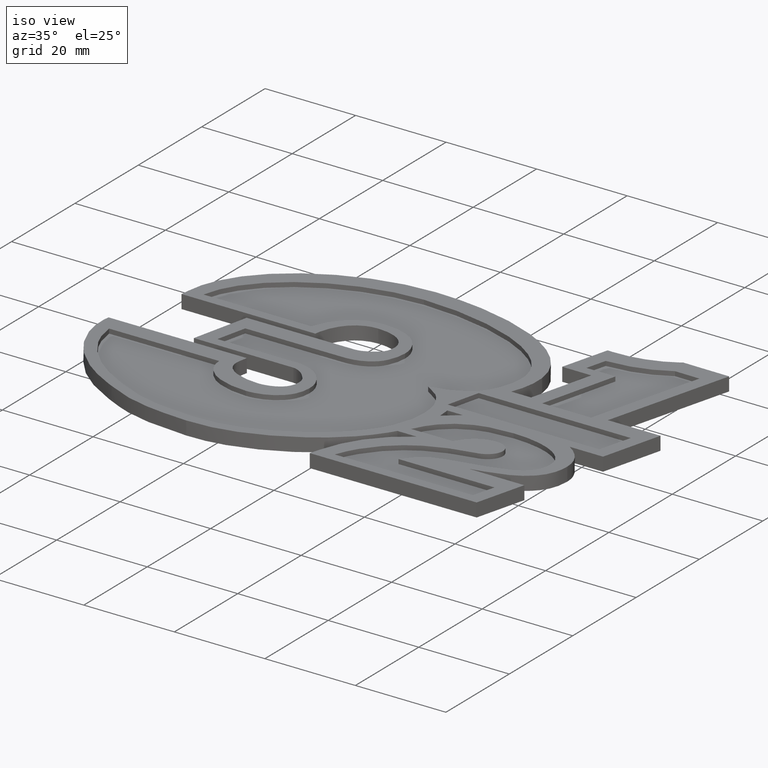
[diagram: clean part render]
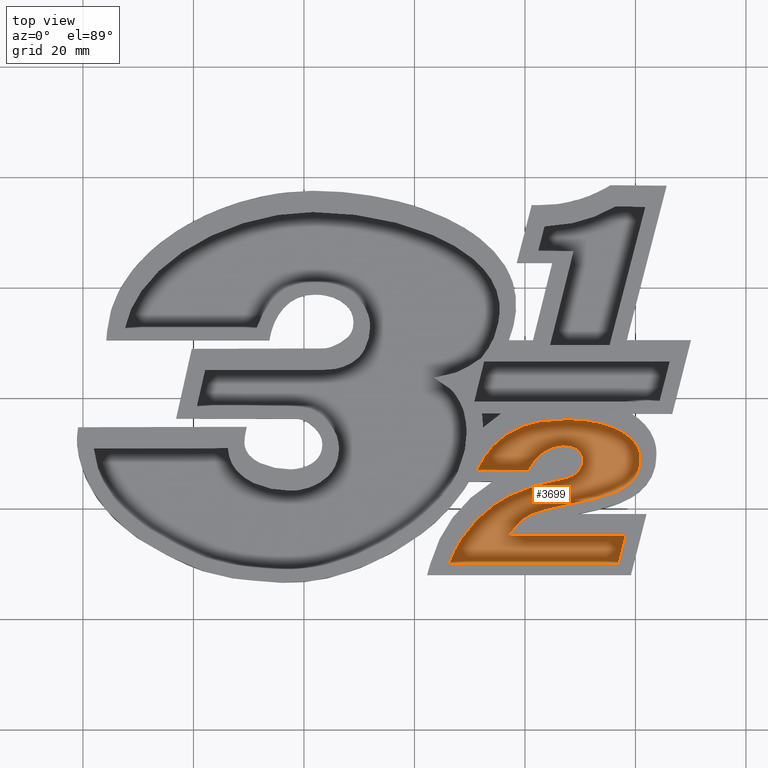
[diagram: tour spotlight — one face highlighted and labeled with its STEP entity id]
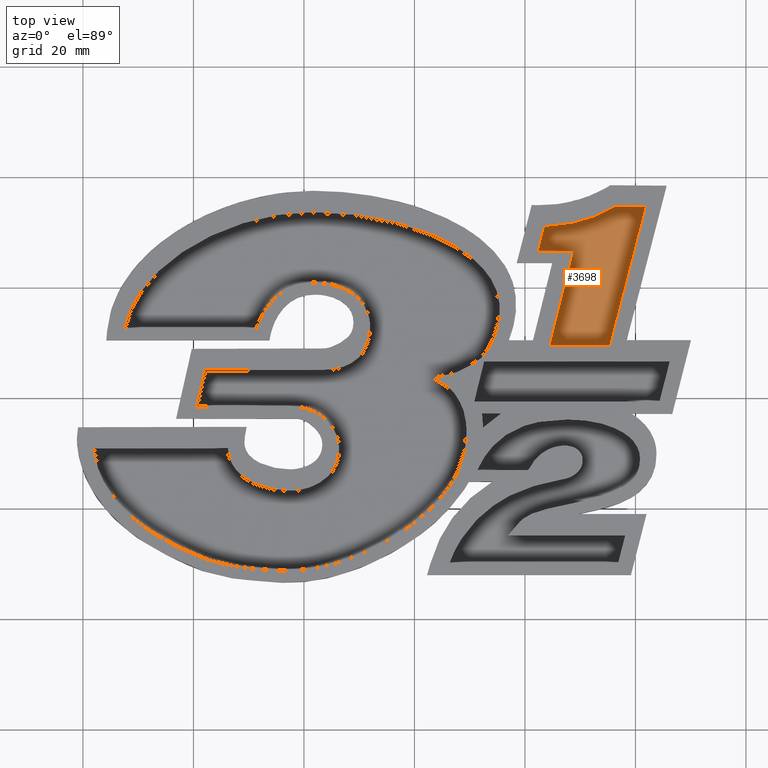
[diagram: tour spotlight — one face highlighted and labeled with its STEP entity id]
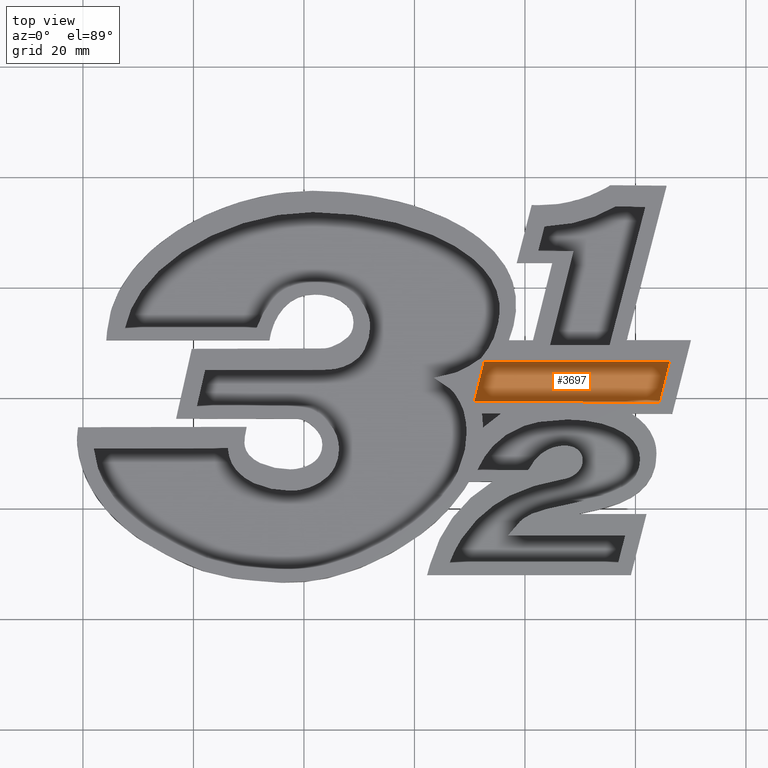
[diagram: tour spotlight — one face highlighted and labeled with its STEP entity id]
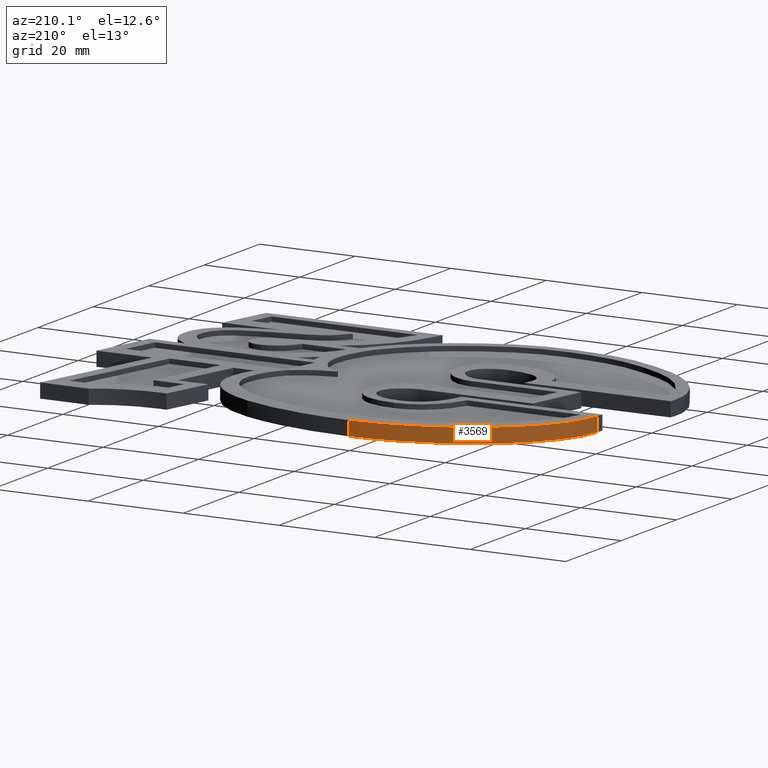
[diagram: tour spotlight — one face highlighted and labeled with its STEP entity id]
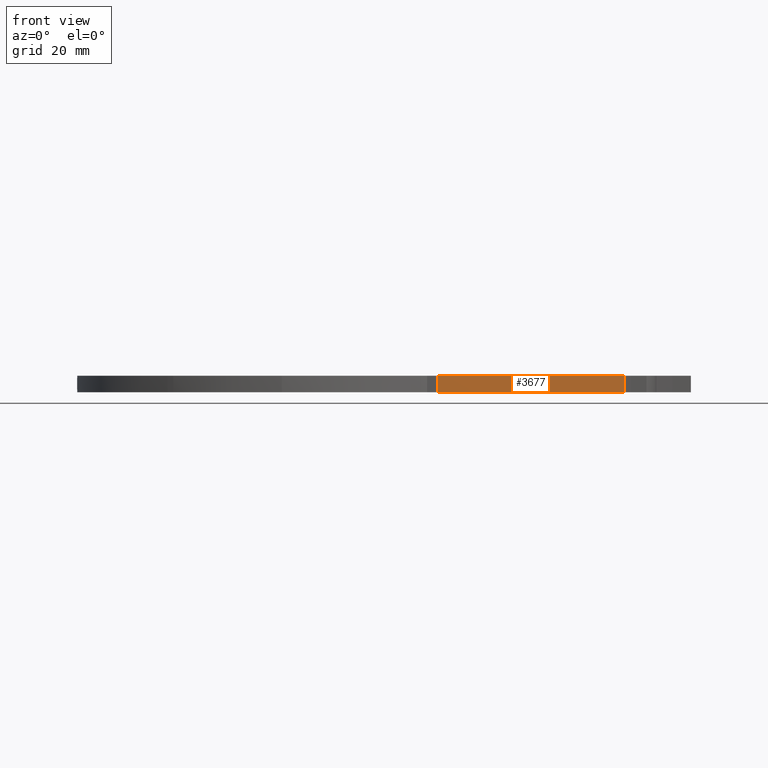
[diagram: tour spotlight — one face highlighted and labeled with its STEP entity id]
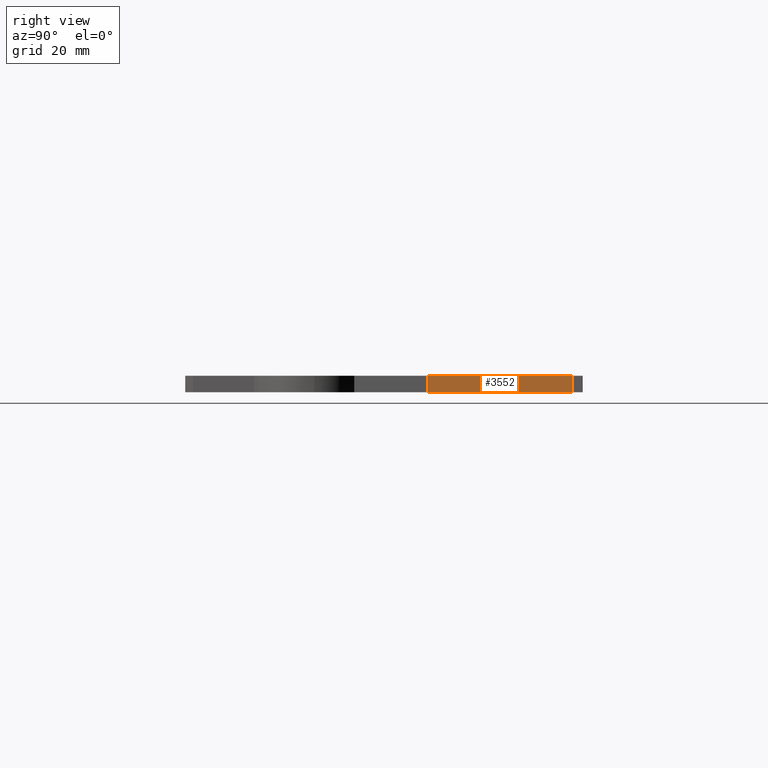
[diagram: tour spotlight — one face highlighted and labeled with its STEP entity id]
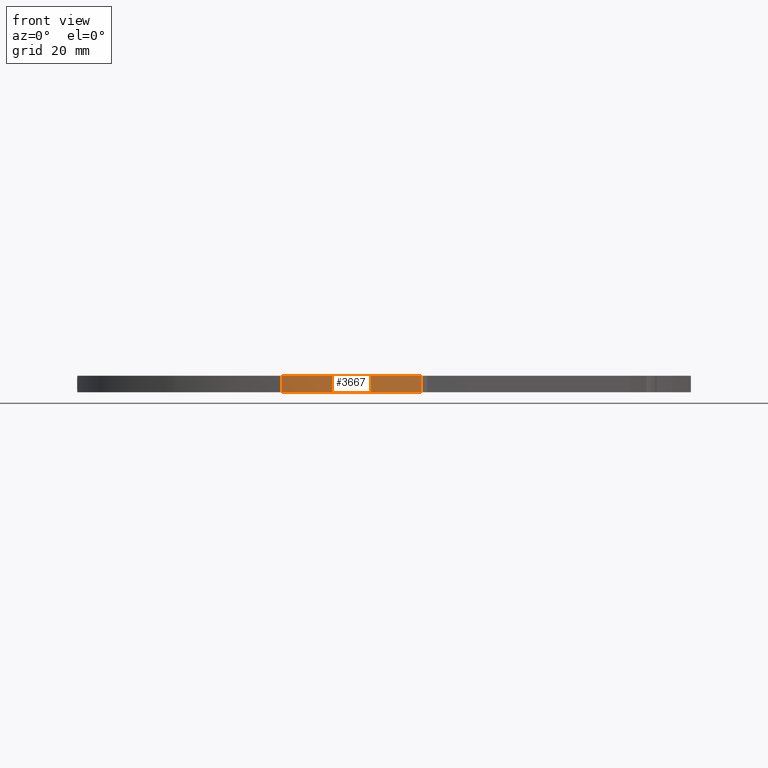
[diagram: tour spotlight — one face highlighted and labeled with its STEP entity id]
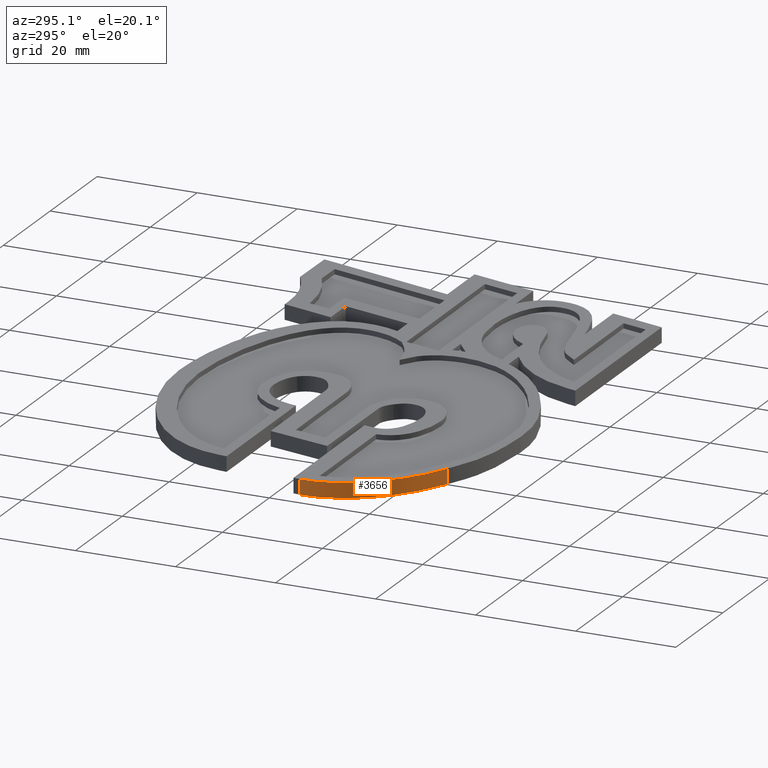
[diagram: tour spotlight — one face highlighted and labeled with its STEP entity id]
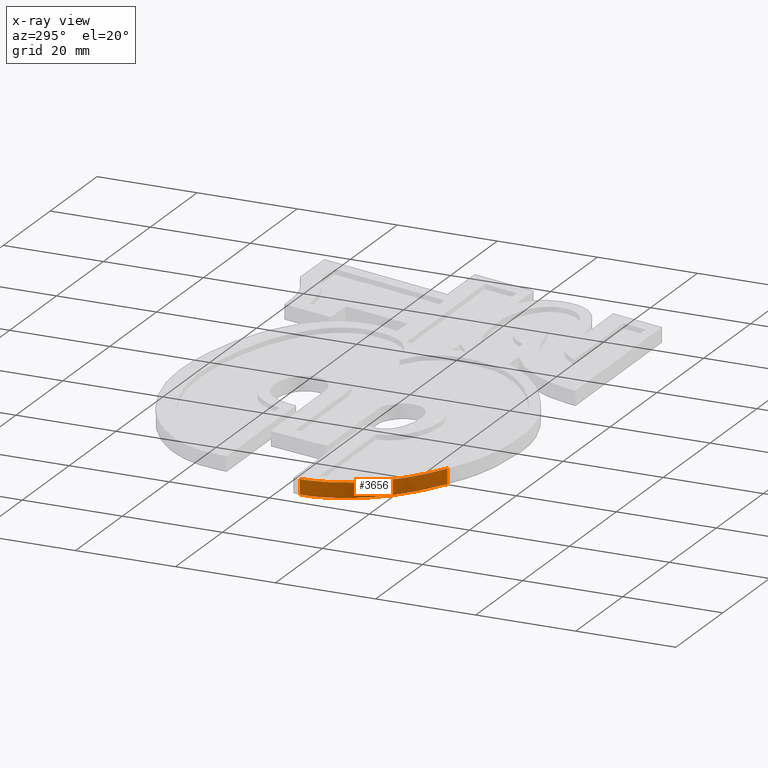
[diagram: x-ray of the same camera — body ghosted, this tour face saturated]
A machine part: a face-by-face anatomy tour. The part has 157 B-rep faces; the first image is the clean iso view, then the 8 largest visible faces are spotlighted one at a time (largest first), each with its STEP entity span.

Face 1 — top view, entity #3699. In plain terms, the highlighted planar face has unit normal (0, 0, 1).
Definition (entity closure, byte-faithful):
#12 = EDGE_LOOP ( 'NONE', ( #2918, #3053, #3118, #3275, #3280, #3178, #3092, #3313, #3250, #3023, #2990, #3136, #2992, #3047, #3033, #3051, #3045, #2912, #3085, #2909, #3020, #2902 ) ) ;
#14 = VERTEX_POINT ( 'NONE', #1050 ) ;
#31 = VERTEX_POINT ( 'NONE', #5538 ) ;
#38 = VERTEX_POINT ( 'NONE', #1059 ) ;
#42 = VERTEX_POINT ( 'NONE', #1063 ) ;
#53 = VERTEX_POINT ( 'NONE', #1074 ) ;
#65 = VERTEX_POINT ( 'NONE', #1085 ) ;
#69 = VERTEX_POINT ( 'NONE', #1089 ) ;
#71 = VERTEX_POINT ( 'NONE', #1091 ) ;
#93 = VERTEX_POINT ( 'NONE', #1113 ) ;
#96 = VERTEX_POINT ( 'NONE', #1116 ) ;
#140 = VERTEX_POINT ( 'NONE', #1160 ) ;
#142 = VERTEX_POINT ( 'NONE', #1162 ) ;
#144 = VERTEX_POINT ( 'NONE', #1164 ) ;
#145 = VERTEX_POINT ( 'NONE', #1165 ) ;
#152 = VERTEX_POINT ( 'NONE', #1172 ) ;
#158 = VERTEX_POINT ( 'NONE', #1178 ) ;
#164 = VERTEX_POINT ( 'NONE', #1184 ) ;
#170 = VERTEX_POINT ( 'NONE', #1190 ) ;
#171 = VERTEX_POINT ( 'NONE', #1191 ) ;
#178 = VERTEX_POINT ( 'NONE', #1198 ) ;
#182 = VERTEX_POINT ( 'NONE', #1202 ) ;
#184 = VERTEX_POINT ( 'NONE', #1204 ) ;
#537 = EDGE_CURVE ( 'NONE', #140, #145, #3318, .T. ) ;
#540 = EDGE_CURVE ( 'NONE', #142, #140, #3320, .T. ) ;
#543 = EDGE_CURVE ( 'NONE', #71, #142, #1285, .T. ) ;
#675 = EDGE_CURVE ( 'NONE', #38, #65, #1770, .T. ) ;
#680 = EDGE_CURVE ( 'NONE', #53, #38, #1777, .T. ) ;
#683 = EDGE_CURVE ( 'NONE', #69, #53, #1795, .T. ) ;
#686 = EDGE_CURVE ( 'NONE', #14, #69, #1804, .T. ) ;
#689 = EDGE_CURVE ( 'NONE', #171, #14, #1813, .T. ) ;
#692 = EDGE_CURVE ( 'NONE', #170, #171, #4220, .T. ) ;
#695 = EDGE_CURVE ( 'NONE', #178, #170, #1833, .T. ) ;
#698 = EDGE_CURVE ( 'NONE', #158, #178, #1842, .T. ) ;
#701 = EDGE_CURVE ( 'NONE', #96, #158, #4222, .T. ) ;
#704 = EDGE_CURVE ( 'NONE', #144, #96, #1862, .T. ) ;
#707 = EDGE_CURVE ( 'NONE', #152, #144, #4224, .T. ) ;
#710 = EDGE_CURVE ( 'NONE', #184, #152, #4226, .T. ) ;
#713 = EDGE_CURVE ( 'NONE', #145, #184, #4228, .T. ) ;
#811 = AXIS2_PLACEMENT_3D ( 'NONE', #3843, #3849, #3850 ) ;
#1050 = CARTESIAN_POINT ( 'NONE',  ( 136.8450493364485100, 110.1257638991321000, 0.0000000000000000000 ) ) ;
#1059 = CARTESIAN_POINT ( 'NONE',  ( 116.9158609733752200, 115.1394113588162200, 0.0000000000000000000 ) ) ;
#1063 = CARTESIAN_POINT ( 'NONE',  ( 140.8044975776460900, 129.1016943414368300, -3.388131789017201400E-018 ) ) ;
#1074 = CARTESIAN_POINT ( 'NONE',  ( 120.1993814803668000, 115.1397558683648200, 0.0000000000000000000 ) ) ;
#1085 = CARTESIAN_POINT ( 'NONE',  ( 119.0652560466226100, 117.6216026559387000, 0.0000000000000000000 ) ) ;
#1089 = CARTESIAN_POINT ( 'NONE',  ( 138.1286919142526100, 115.1414784161074000, 0.0000000000000000000 ) ) ;
#1091 = CARTESIAN_POINT ( 'NONE',  ( 120.5662841495458900, 126.9991525667887800, 0.0000000000000000000 ) ) ;
#1113 = CARTESIAN_POINT ( 'NONE',  ( 131.9530137461392800, 121.6861263169800700, -3.388131789017201400E-018 ) ) ;
#1116 = CARTESIAN_POINT ( 'NONE',  ( 122.3188042228925000, 124.2358414780699000, 0.0000000000000000000 ) ) ;
#1160 = CARTESIAN_POINT ( 'NONE',  ( 126.6382649422987900, 131.3709787375708200, -3.388131789017201400E-018 ) ) ;
#1162 = CARTESIAN_POINT ( 'NONE',  ( 120.8932237110961000, 127.4521826230990900, 0.0000000000000000000 ) ) ;
#1164 = CARTESIAN_POINT ( 'NONE',  ( 122.4321478643572000, 124.2582345987240200, 0.0000000000000000000 ) ) ;
#1165 = CARTESIAN_POINT ( 'NONE',  ( 130.4495740776307000, 128.9959299100396200, -3.388131789017201400E-018 ) ) ;
#1172 = CARTESIAN_POINT ( 'NONE',  ( 122.5437689580793000, 124.2985422159014100, -3.388131789017201400E-018 ) ) ;
#1178 = CARTESIAN_POINT ( 'NONE',  ( 121.7572536587968000, 124.0994156968539800, 0.0000000000000000000 ) ) ;
#1184 = CARTESIAN_POINT ( 'NONE',  ( 127.6738606451648900, 136.1110856157261000, -3.388131789017201400E-018 ) ) ;
#1190 = CARTESIAN_POINT ( 'NONE',  ( 121.5912000564078000, 124.0542849459972000, 0.0000000000000000000 ) ) ;
#1191 = CARTESIAN_POINT ( 'NONE',  ( 106.3339056808818000, 110.1264529182291900, 0.0000000000000000000 ) ) ;
#1198 = CARTESIAN_POINT ( 'NONE',  ( 121.5912000564078000, 124.0549739650942900, 0.0000000000000000000 ) ) ;
#1202 = CARTESIAN_POINT ( 'NONE',  ( 111.3916503627771000, 126.9991525667887800, 0.0000000000000000000 ) ) ;
#1204 = CARTESIAN_POINT ( 'NONE',  ( 126.8067301115275100, 125.2945193206871900, -3.388131789017201400E-018 ) ) ;
#1229 = CARTESIAN_POINT ( 'NONE',  ( 126.6382649422987900, 131.3709787375708200, -3.388131789017201400E-018 ) ) ;
#1260 = CARTESIAN_POINT ( 'NONE',  ( 129.2458577150844400, 131.5859526958504100, -3.388131789017201400E-018 ) ) ;
#1265 = CARTESIAN_POINT ( 'NONE',  ( 130.3210720160309100, 130.2261735078223000, -3.388131789017201400E-018 ) ) ;
#1266 = CARTESIAN_POINT ( 'NONE',  ( 130.4495740776307000, 128.9959299100396200, -3.388131789017201400E-018 ) ) ;
#1270 = CARTESIAN_POINT ( 'NONE',  ( 120.8932237110961000, 127.4521826230990900, 0.0000000000000000000 ) ) ;
#1271 = CARTESIAN_POINT ( 'NONE',  ( 121.2725287240221900, 128.2066585343688400, -3.388131789017201400E-018 ) ) ;
#1275 = CARTESIAN_POINT ( 'NONE',  ( 122.9447780725624000, 131.0664322966748000, -3.388131789017201400E-018 ) ) ;
#1276 = CARTESIAN_POINT ( 'NONE',  ( 126.6382649422987900, 131.3709787375708200, -3.388131789017201400E-018 ) ) ;
#1285 = LINE ( 'NONE', #1287, #2647 ) ;
#1287 = CARTESIAN_POINT ( 'NONE',  ( 69.08704973448810400, 55.66596683886989900, 0.0000000000000000000 ) ) ;
#1288 = DIRECTION ( 'NONE',  ( 0.5851978273386723200, 0.8108905615914501200, 0.0000000000000000000 ) ) ;
#1770 = LINE ( 'NONE', #1771, #2725 ) ;
#1771 = CARTESIAN_POINT ( 'NONE',  ( 68.94867356065702800, 59.74534415115014200, 0.0000000000000000000 ) ) ;
#1772 = DIRECTION ( 'NONE',  ( 0.6546109192187723500, 0.7559659677786784200, 0.0000000000000000000 ) ) ;
#1777 = LINE ( 'NONE', #1787, #2728 ) ;
#1787 = CARTESIAN_POINT ( 'NONE',  ( 96.52732366627373000, 115.1372721774804300, 0.0000000000000000000 ) ) ;
#1788 = DIRECTION ( 'NONE',  ( -0.9999999944958144500, -0.0001049207842519326100, 0.0000000000000000000 ) ) ;
#1795 = LINE ( 'NONE', #1796, #2723 ) ;
#1796 = CARTESIAN_POINT ( 'NONE',  ( 96.52802498942261900, 115.1374816569924500, 0.0000000000000000000 ) ) ;
#1797 = DIRECTION ( 'NONE',  ( -0.9999999953848548500, -9.607439957041398900E-005, 0.0000000000000000000 ) ) ;
#1804 = LINE ( 'NONE', #1805, #2690 ) ;
#1805 = CARTESIAN_POINT ( 'NONE',  ( 116.5284218815155600, 30.74042328819081100, 0.0000000000000000000 ) ) ;
#1806 = DIRECTION ( 'NONE',  ( 0.2479334661697424900, 0.9687770622558408200, 0.0000000000000000000 ) ) ;
#1808 = CARTESIAN_POINT ( 'NONE',  ( 118.8368462159505000, 123.2870621814321100, -3.388131789017201400E-018 ) ) ;
#1813 = LINE ( 'NONE', #1814, #2686 ) ;
#1814 = CARTESIAN_POINT ( 'NONE',  ( 96.53731900496274000, 110.1266741500316500, 0.0000000000000000000 ) ) ;
#1815 = DIRECTION ( 'NONE',  ( 0.9999999997450145200, -2.258253917649086400E-005, 0.0000000000000000000 ) ) ;
#1817 = CARTESIAN_POINT ( 'NONE',  ( 121.5912000564078000, 124.0542849459972000, 0.0000000000000000000 ) ) ;
#1823 = CARTESIAN_POINT ( 'NONE',  ( 109.9922525766686100, 120.0896690615717000, -3.388131789017201400E-018 ) ) ;
#1824 = CARTESIAN_POINT ( 'NONE',  ( 106.3339056808818000, 110.1264529182291900, 0.0000000000000000000 ) ) ;
#1833 = LINE ( 'NONE', #1834, #2719 ) ;
#1834 = CARTESIAN_POINT ( 'NONE',  ( 121.5912000564078000, 35.85705894669606400, 0.0000000000000000000 ) ) ;
#1835 = DIRECTION ( 'NONE',  ( 0.0000000000000000000, -1.000000000000000000, 0.0000000000000000000 ) ) ;
#1837 = CARTESIAN_POINT ( 'NONE',  ( 122.3163926560529000, 124.2351524589728100, -3.388131789017201400E-018 ) ) ;
#1842 = LINE ( 'NONE', #1843, #2717 ) ;
#1843 = CARTESIAN_POINT ( 'NONE',  ( 76.18330145858769200, 111.9022376183815300, 0.0000000000000000000 ) ) ;
#1844 = DIRECTION ( 'NONE',  ( -0.9660016974192408000, -0.2585357239979524900, 0.0000000000000000000 ) ) ;
#1846 = CARTESIAN_POINT ( 'NONE',  ( 122.3188042228925000, 124.2358414780699000, 0.0000000000000000000 ) ) ;
#1852 = CARTESIAN_POINT ( 'NONE',  ( 122.1120984937774900, 124.1941558226984100, -3.388131789017201400E-018 ) ) ;
#1853 = CARTESIAN_POINT ( 'NONE',  ( 121.7572536587968000, 124.0994156968539800, 0.0000000000000000000 ) ) ;
#1858 = CARTESIAN_POINT ( 'NONE',  ( 122.4352484502940000, 124.2589236178211000, -3.388131789017201400E-018 ) ) ;
#1862 = LINE ( 'NONE', #1863, #2606 ) ;
#1863 = CARTESIAN_POINT ( 'NONE',  ( 80.69933213948679900, 116.0131494251223100, 0.0000000000000000000 ) ) ;
#1864 = DIRECTION ( 'NONE',  ( -0.9810367428846557000, -0.1938218488980688900, 0.0000000000000000000 ) ) ;
#1866 = CARTESIAN_POINT ( 'NONE',  ( 122.5437689580793000, 124.2985422159014100, -3.388131789017201400E-018 ) ) ;
#1872 = CARTESIAN_POINT ( 'NONE',  ( 122.4321478643572000, 124.2582345987240200, 0.0000000000000000000 ) ) ;
#1877 = CARTESIAN_POINT ( 'NONE',  ( 126.8067301115275100, 125.2945193206871900, -3.388131789017201400E-018 ) ) ;
#1878 = CARTESIAN_POINT ( 'NONE',  ( 124.4988606459586200, 125.0023752235380000, -3.388131789017201400E-018 ) ) ;
#1882 = CARTESIAN_POINT ( 'NONE',  ( 122.5616834546026200, 124.3050878973234000, -3.388131789017201400E-018 ) ) ;
#1883 = CARTESIAN_POINT ( 'NONE',  ( 122.5437689580793000, 124.2985422159014100, -3.388131789017201400E-018 ) ) ;
#1887 = CARTESIAN_POINT ( 'NONE',  ( 130.6338866860915000, 127.2323855311402000, -3.388131789017201400E-018 ) ) ;
#1888 = CARTESIAN_POINT ( 'NONE',  ( 130.4495740776307000, 128.9959299100396200, -3.388131789017201400E-018 ) ) ;
#1894 = CARTESIAN_POINT ( 'NONE',  ( 128.9998778974375000, 125.5721940167983100, -3.388131789017201400E-018 ) ) ;
#1895 = CARTESIAN_POINT ( 'NONE',  ( 126.8067301115275100, 125.2945193206871900, -3.388131789017201400E-018 ) ) ;
#2249 = CARTESIAN_POINT ( 'NONE',  ( 122.3518771395508900, 136.1110856157261000, -3.388131789017201400E-018 ) ) ;
#2254 = CARTESIAN_POINT ( 'NONE',  ( 127.6738606451648900, 136.1110856157261000, -3.388131789017201400E-018 ) ) ;
#2259 = CARTESIAN_POINT ( 'NONE',  ( 115.0710123410239000, 135.1137304727463100, -3.388131789017201400E-018 ) ) ;
#2260 = CARTESIAN_POINT ( 'NONE',  ( 111.3916503627771000, 126.9991525667887800, 0.0000000000000000000 ) ) ;
#2430 = LINE ( 'NONE', #2431, #2787 ) ;
#2431 = CARTESIAN_POINT ( 'NONE',  ( 96.53564180846736100, 126.9991525667887800, 0.0000000000000000000 ) ) ;
#2432 = DIRECTION ( 'NONE',  ( 1.000000000000000000, 0.0000000000000000000, 0.0000000000000000000 ) ) ;
#2606 = VECTOR ( 'NONE', #1864, 1000.000000000000000 ) ;
#2647 = VECTOR ( 'NONE', #1288, 1000.000000000000100 ) ;
#2686 = VECTOR ( 'NONE', #1815, 999.9999999999998900 ) ;
#2690 = VECTOR ( 'NONE', #1806, 999.9999999999998900 ) ;
#2717 = VECTOR ( 'NONE', #1844, 1000.000000000000000 ) ;
#2719 = VECTOR ( 'NONE', #1835, 1000.000000000000000 ) ;
#2723 = VECTOR ( 'NONE', #1797, 1000.000000000000100 ) ;
#2725 = VECTOR ( 'NONE', #1772, 1000.000000000000000 ) ;
#2728 = VECTOR ( 'NONE', #1788, 1000.000000000000200 ) ;
#2787 = VECTOR ( 'NONE', #2432, 1000.000000000000000 ) ;
#2902 = ORIENTED_EDGE ( 'NONE', *, *, #3607, .T. ) ;
#2909 = ORIENTED_EDGE ( 'NONE', *, *, #675, .T. ) ;
#2912 = ORIENTED_EDGE ( 'NONE', *, *, #683, .T. ) ;
#2918 = ORIENTED_EDGE ( 'NONE', *, *, #3639, .T. ) ;
#2990 = ORIENTED_EDGE ( 'NONE', *, *, #704, .T. ) ;
#2992 = ORIENTED_EDGE ( 'NONE', *, *, #698, .T. ) ;
#3020 = ORIENTED_EDGE ( 'NONE', *, *, #3623, .T. ) ;
#3023 = ORIENTED_EDGE ( 'NONE', *, *, #707, .T. ) ;
#3033 = ORIENTED_EDGE ( 'NONE', *, *, #692, .T. ) ;
#3045 = ORIENTED_EDGE ( 'NONE', *, *, #686, .T. ) ;
#3047 = ORIENTED_EDGE ( 'NONE', *, *, #695, .T. ) ;
#3051 = ORIENTED_EDGE ( 'NONE', *, *, #689, .T. ) ;
#3053 = ORIENTED_EDGE ( 'NONE', *, *, #3625, .T. ) ;
#3085 = ORIENTED_EDGE ( 'NONE', *, *, #680, .T. ) ;
#3092 = ORIENTED_EDGE ( 'NONE', *, *, #537, .T. ) ;
#3118 = ORIENTED_EDGE ( 'NONE', *, *, #3370, .T. ) ;
#3136 = ORIENTED_EDGE ( 'NONE', *, *, #701, .T. ) ;
#3178 = ORIENTED_EDGE ( 'NONE', *, *, #540, .T. ) ;
#3250 = ORIENTED_EDGE ( 'NONE', *, *, #710, .T. ) ;
#3275 = ORIENTED_EDGE ( 'NONE', *, *, #3425, .T. ) ;
#3280 = ORIENTED_EDGE ( 'NONE', *, *, #543, .T. ) ;
#3313 = ORIENTED_EDGE ( 'NONE', *, *, #713, .T. ) ;
#3318 = B_SPLINE_CURVE_WITH_KNOTS ( 'NONE', 3,
 ( #1229, #1260, #1265, #1266 ),
 .UNSPECIFIED., .F., .F.,
 ( 4, 4 ),
 ( 4.000000000000000000, 5.000000000000000000 ),
 .UNSPECIFIED. ) ;
#3320 = B_SPLINE_CURVE_WITH_KNOTS ( 'NONE', 3,
 ( #1270, #1271, #1275, #1276 ),
 .UNSPECIFIED., .F., .F.,
 ( 4, 4 ),
 ( 3.000000000000000000, 4.000000000000000000 ),
 .UNSPECIFIED. ) ;
#3370 = EDGE_CURVE ( 'NONE', #164, #182, #4229, .T. ) ;
#3425 = EDGE_CURVE ( 'NONE', #182, #71, #2430, .T. ) ;
#3607 = EDGE_CURVE ( 'NONE', #31, #93, #4282, .T. ) ;
#3623 = EDGE_CURVE ( 'NONE', #65, #31, #4290, .T. ) ;
#3625 = EDGE_CURVE ( 'NONE', #42, #164, #4292, .T. ) ;
#3639 = EDGE_CURVE ( 'NONE', #93, #42, #4299, .T. ) ;
#3699 = ADVANCED_FACE ( 'NONE', ( #3847 ), #3841, .T. ) ;
#3841 = PLANE ( 'NONE',  #811 ) ;
#3843 = CARTESIAN_POINT ( 'NONE',  ( 142.6164886118068000, 134.0428947961333700, 0.0000000000000000000 ) ) ;
#3847 = FACE_OUTER_BOUND ( 'NONE', #12, .T. ) ;
#3849 = DIRECTION ( 'NONE',  ( 0.0000000000000000000, 0.0000000000000000000, 1.000000000000000000 ) ) ;
#3850 = DIRECTION ( 'NONE',  ( 1.000000000000000000, 0.0000000000000000000, -0.0000000000000000000 ) ) ;
#4220 = B_SPLINE_CURVE_WITH_KNOTS ( 'NONE', 3,
 ( #1817, #1808, #1823, #1824 ),
 .UNSPECIFIED., .F., .F.,
 ( 4, 4 ),
 ( 12.00000000000000000, 13.00000000000000000 ),
 .UNSPECIFIED. ) ;
#4222 = B_SPLINE_CURVE_WITH_KNOTS ( 'NONE', 3,
 ( #1846, #1837, #1852, #1853 ),
 .UNSPECIFIED., .F., .F.,
 ( 4, 4 ),
 ( 9.000000000000000000, 10.00000000000000000 ),
 .UNSPECIFIED. ) ;
#4224 = B_SPLINE_CURVE_WITH_KNOTS ( 'NONE', 2,
 ( #1866, #1858, #1872 ),
 .UNSPECIFIED., .F., .F.,
 ( 3, 3 ),
 ( 7.000000000000000000, 8.000000000000000000 ),
 .UNSPECIFIED. ) ;
#4226 = B_SPLINE_CURVE_WITH_KNOTS ( 'NONE', 3,
 ( #1877, #1878, #1882, #1883 ),
 .UNSPECIFIED., .F., .F.,
 ( 4, 4 ),
 ( 6.000000000000000000, 7.000000000000000000 ),
 .UNSPECIFIED. ) ;
#4228 = B_SPLINE_CURVE_WITH_KNOTS ( 'NONE', 3,
 ( #1888, #1887, #1894, #1895 ),
 .UNSPECIFIED., .F., .F.,
 ( 4, 4 ),
 ( 5.000000000000000000, 6.000000000000000000 ),
 .UNSPECIFIED. ) ;
#4229 = B_SPLINE_CURVE_WITH_KNOTS ( 'NONE', 3,
 ( #2254, #2249, #2259, #2260 ),
 .UNSPECIFIED., .F., .F.,
 ( 4, 4 ),
 ( 0.0000000000000000000, 1.000000000000000000 ),
 .UNSPECIFIED. ) ;
#4282 = B_SPLINE_CURVE_WITH_KNOTS ( 'NONE', 2,
 ( #5102, #5101, #5108, #5109, #5110 ),
 .UNSPECIFIED., .F., .F.,
 ( 3, 2, 3 ),
 ( 19.00000000000000000, 19.99986468255519900, 19.99994825236198500 ),
 .UNSPECIFIED. ) ;
#4290 = B_SPLINE_CURVE_WITH_KNOTS ( 'NONE', 3,
 ( #5167, #5168, #5174, #5175 ),
 .UNSPECIFIED., .F., .F.,
 ( 4, 4 ),
 ( 18.00000000000000000, 19.00000000000000000 ),
 .UNSPECIFIED. ) ;
#4292 = B_SPLINE_CURVE_WITH_KNOTS ( 'NONE', 3,
 ( #5176, #5177, #5182, #5183 ),
 .UNSPECIFIED., .F., .F.,
 ( 4, 4 ),
 ( 21.00000000000000000, 22.00000000000000000 ),
 .UNSPECIFIED. ) ;
#4299 = B_SPLINE_CURVE_WITH_KNOTS ( 'NONE', 3,
 ( #5224, #5223, #5230, #5231 ),
 .UNSPECIFIED., .F., .F.,
 ( 4, 4 ),
 ( 20.00000000000000000, 21.00000000000000000 ),
 .UNSPECIFIED. ) ;
#5101 = CARTESIAN_POINT ( 'NONE',  ( 131.9515881629045900, 121.6858892561345200, -3.388131789017201400E-018 ) ) ;
#5102 = CARTESIAN_POINT ( 'NONE',  ( 123.9634928075507900, 119.9342952551869000, -3.388131789017201400E-018 ) ) ;
#5108 = CARTESIAN_POINT ( 'NONE',  ( 131.9530135078754300, 121.6861262773590500, -3.388131789017201400E-018 ) ) ;
#5109 = CARTESIAN_POINT ( 'NONE',  ( 131.9530136270073200, 121.6861262971695700, -3.388131789017201400E-018 ) ) ;
#5110 = CARTESIAN_POINT ( 'NONE',  ( 131.9530137461392800, 121.6861263169800700, -3.388131789017201400E-018 ) ) ;
#5167 = CARTESIAN_POINT ( 'NONE',  ( 119.0652560466226100, 117.6216026559387000, 0.0000000000000000000 ) ) ;
#5168 = CARTESIAN_POINT ( 'NONE',  ( 119.2850531385815000, 117.8755061932017200, -3.388131789017201400E-018 ) ) ;
#5174 = CARTESIAN_POINT ( 'NONE',  ( 120.5549153344446200, 119.1805083630143000, -3.388131789017201400E-018 ) ) ;
#5175 = CARTESIAN_POINT ( 'NONE',  ( 123.9634928075507900, 119.9342952551869000, -3.388131789017201400E-018 ) ) ;
#5176 = CARTESIAN_POINT ( 'NONE',  ( 140.8044975776460900, 129.1016943414368300, -3.388131789017201400E-018 ) ) ;
#5177 = CARTESIAN_POINT ( 'NONE',  ( 140.8017415012579100, 133.1631174089978100, -3.388131789017201400E-018 ) ) ;
#5182 = CARTESIAN_POINT ( 'NONE',  ( 135.2792534384024100, 136.1110856157261000, -3.388131789017201400E-018 ) ) ;
#5183 = CARTESIAN_POINT ( 'NONE',  ( 127.6738606451648900, 136.1110856157261000, -3.388131789017201400E-018 ) ) ;
#5223 = CARTESIAN_POINT ( 'NONE',  ( 138.2423800652657900, 123.0445274592705000, -3.388131789017201400E-018 ) ) ;
#5224 = CARTESIAN_POINT ( 'NONE',  ( 131.9530137461392800, 121.6861263169800700, -3.388131789017201400E-018 ) ) ;
#5230 = CARTESIAN_POINT ( 'NONE',  ( 140.8069091444857900, 125.1932335134207900, -3.388131789017201400E-018 ) ) ;
#5231 = CARTESIAN_POINT ( 'NONE',  ( 140.8044975776460900, 129.1016943414368300, -3.388131789017201400E-018 ) ) ;
#5538 = CARTESIAN_POINT ( 'NONE',  ( 123.9634928075507900, 119.9342952551869000, -3.388131789017201400E-018 ) ) ;

Face 2 — top view, entity #3698. In plain terms, the highlighted planar face has unit normal (0, 0, 1).
Definition (entity closure, byte-faithful):
#23 = EDGE_LOOP ( 'NONE', ( #3160, #3138, #3140, #3170, #3162, #3173, #2934, #3124, #2914 ) ) ;
#121 = VERTEX_POINT ( 'NONE', #1141 ) ;
#123 = VERTEX_POINT ( 'NONE', #1143 ) ;
#125 = VERTEX_POINT ( 'NONE', #1145 ) ;
#126 = VERTEX_POINT ( 'NONE', #1146 ) ;
#129 = VERTEX_POINT ( 'NONE', #1149 ) ;
#131 = VERTEX_POINT ( 'NONE', #1151 ) ;
#133 = VERTEX_POINT ( 'NONE', #1153 ) ;
#135 = VERTEX_POINT ( 'NONE', #1155 ) ;
#137 = VERTEX_POINT ( 'NONE', #1157 ) ;
#781 = AXIS2_PLACEMENT_3D ( 'NONE', #3838, #3844, #3845 ) ;
#1141 = CARTESIAN_POINT ( 'NONE',  ( 122.3925292662769200, 166.6105159466429500, 0.0000000000000000000 ) ) ;
#1143 = CARTESIAN_POINT ( 'NONE',  ( 126.8718424161987000, 166.6056928129635300, 0.0000000000000000000 ) ) ;
#1145 = CARTESIAN_POINT ( 'NONE',  ( 128.7904160919343000, 166.6034535008981500, 0.0000000000000000000 ) ) ;
#1146 = CARTESIAN_POINT ( 'NONE',  ( 128.3256727109740900, 164.7422406649919300, 0.0000000000000000000 ) ) ;
#1149 = CARTESIAN_POINT ( 'NONE',  ( 135.3147379219005000, 149.6182714847450900, 0.0000000000000000000 ) ) ;
#1151 = CARTESIAN_POINT ( 'NONE',  ( 141.7760145044866000, 174.6076160965533300, 0.0000000000000000000 ) ) ;
#1153 = CARTESIAN_POINT ( 'NONE',  ( 124.5450249254609900, 149.5988066952535000, 0.0000000000000000000 ) ) ;
#1155 = CARTESIAN_POINT ( 'NONE',  ( 123.5414686106077100, 171.0567561799063300, 0.0000000000000000000 ) ) ;
#1157 = CARTESIAN_POINT ( 'NONE',  ( 136.3393093192138100, 174.6553306690240100, 0.0000000000000000000 ) ) ;
#2268 = LINE ( 'NONE', #2271, #2741 ) ;
#2271 = CARTESIAN_POINT ( 'NONE',  ( 89.10134692687698500, 37.77813235674590000, 0.0000000000000000000 ) ) ;
#2273 = DIRECTION ( 'NONE',  ( -0.2501888415609189700, -0.9681970582264777200, 0.0000000000000000000 ) ) ;
#2320 = LINE ( 'NONE', #2321, #2753 ) ;
#2321 = CARTESIAN_POINT ( 'NONE',  ( 96.33016125579145200, 149.5478121718111300, 0.0000000000000000000 ) ) ;
#2322 = DIRECTION ( 'NONE',  ( 0.9999983667220342400, 0.001807360856007129800, 0.0000000000000000000 ) ) ;
#2323 = LINE ( 'NONE', #2324, #2754 ) ;
#2324 = CARTESIAN_POINT ( 'NONE',  ( 96.68828952114132800, 166.6409223144567600, 0.0000000000000000000 ) ) ;
#2325 = DIRECTION ( 'NONE',  ( 0.9999993188514473300, -0.001167174640413931500, 0.0000000000000000000 ) ) ;
#2343 = LINE ( 'NONE', #2363, #2762 ) ;
#2346 = CARTESIAN_POINT ( 'NONE',  ( 134.9437011381390900, 173.7887168997094100, -3.388131789017201400E-018 ) ) ;
#2360 = CARTESIAN_POINT ( 'NONE',  ( 136.3393093192138100, 174.6553306690240100, 0.0000000000000000000 ) ) ;
#2363 = CARTESIAN_POINT ( 'NONE',  ( 96.16618005482808900, 35.94931325593427100, 0.0000000000000000000 ) ) ;
#2364 = DIRECTION ( 'NONE',  ( -0.2422609550089180300, -0.9702111263421827600, 0.0000000000000000000 ) ) ;
#2366 = CARTESIAN_POINT ( 'NONE',  ( 130.2401122721275000, 171.2107519480970000, -3.388131789017201400E-018 ) ) ;
#2367 = CARTESIAN_POINT ( 'NONE',  ( 123.5414686106077100, 171.0567561799063300, 0.0000000000000000000 ) ) ;
#2403 = LINE ( 'NONE', #2404, #2778 ) ;
#2404 = CARTESIAN_POINT ( 'NONE',  ( 96.67646137911427200, 166.6382059136036300, 0.0000000000000000000 ) ) ;
#2405 = DIRECTION ( 'NONE',  ( 0.9999994202972313200, -0.001076756797744378300, 0.0000000000000000000 ) ) ;
#2406 = LINE ( 'NONE', #2407, #2779 ) ;
#2407 = CARTESIAN_POINT ( 'NONE',  ( 97.75675953291727200, 174.9939456582768600, 0.0000000000000000000 ) ) ;
#2408 = DIRECTION ( 'NONE',  ( -0.9999614898310645900, 0.008776038675719683200, 0.0000000000000000000 ) ) ;
#2427 = LINE ( 'NONE', #2428, #2786 ) ;
#2428 = CARTESIAN_POINT ( 'NONE',  ( 105.3136504133263100, 33.58740592772436900, 0.0000000000000000000 ) ) ;
#2429 = DIRECTION ( 'NONE',  ( 0.2503288967903355400, 0.9681608561761488900, 0.0000000000000000000 ) ) ;
#2448 = LINE ( 'NONE', #2449, #2793 ) ;
#2449 = CARTESIAN_POINT ( 'NONE',  ( 96.17142626017937300, 35.94798751077446800, 0.0000000000000000000 ) ) ;
#2450 = DIRECTION ( 'NONE',  ( -0.2422214066511003700, -0.9702210006797226100, 0.0000000000000000000 ) ) ;
#2741 = VECTOR ( 'NONE', #2273, 1000.000000000000000 ) ;
#2753 = VECTOR ( 'NONE', #2322, 1000.000000000000100 ) ;
#2754 = VECTOR ( 'NONE', #2325, 1000.000000000000100 ) ;
#2762 = VECTOR ( 'NONE', #2364, 1000.000000000000100 ) ;
#2778 = VECTOR ( 'NONE', #2405, 1000.000000000000000 ) ;
#2779 = VECTOR ( 'NONE', #2408, 1000.000000000000100 ) ;
#2786 = VECTOR ( 'NONE', #2429, 999.9999999999998900 ) ;
#2793 = VECTOR ( 'NONE', #2450, 1000.000000000000000 ) ;
#2914 = ORIENTED_EDGE ( 'NONE', *, *, #3424, .T. ) ;
#2934 = ORIENTED_EDGE ( 'NONE', *, *, #3431, .T. ) ;
#3124 = ORIENTED_EDGE ( 'NONE', *, *, #3389, .T. ) ;
#3138 = ORIENTED_EDGE ( 'NONE', *, *, #3404, .T. ) ;
#3140 = ORIENTED_EDGE ( 'NONE', *, *, #3374, .T. ) ;
#3160 = ORIENTED_EDGE ( 'NONE', *, *, #3417, .T. ) ;
#3162 = ORIENTED_EDGE ( 'NONE', *, *, #3390, .T. ) ;
#3170 = ORIENTED_EDGE ( 'NONE', *, *, #3416, .T. ) ;
#3173 = ORIENTED_EDGE ( 'NONE', *, *, #3403, .T. ) ;
#3374 = EDGE_CURVE ( 'NONE', #135, #121, #2268, .T. ) ;
#3389 = EDGE_CURVE ( 'NONE', #133, #129, #2320, .T. ) ;
#3390 = EDGE_CURVE ( 'NONE', #123, #125, #2323, .T. ) ;
#3403 = EDGE_CURVE ( 'NONE', #125, #126, #2343, .T. ) ;
#3404 = EDGE_CURVE ( 'NONE', #137, #135, #4237, .T. ) ;
#3416 = EDGE_CURVE ( 'NONE', #121, #123, #2403, .T. ) ;
#3417 = EDGE_CURVE ( 'NONE', #131, #137, #2406, .T. ) ;
#3424 = EDGE_CURVE ( 'NONE', #129, #131, #2427, .T. ) ;
#3431 = EDGE_CURVE ( 'NONE', #126, #133, #2448, .T. ) ;
#3698 = ADVANCED_FACE ( 'NONE', ( #3842 ), #3836, .T. ) ;
#3836 = PLANE ( 'NONE',  #781 ) ;
#3838 = CARTESIAN_POINT ( 'NONE',  ( 142.6164886118068000, 134.0428947961333700, 0.0000000000000000000 ) ) ;
#3842 = FACE_OUTER_BOUND ( 'NONE', #23, .T. ) ;
#3844 = DIRECTION ( 'NONE',  ( 0.0000000000000000000, 0.0000000000000000000, 1.000000000000000000 ) ) ;
#3845 = DIRECTION ( 'NONE',  ( 1.000000000000000000, 0.0000000000000000000, -0.0000000000000000000 ) ) ;
#4237 = B_SPLINE_CURVE_WITH_KNOTS ( 'NONE', 3,
 ( #2360, #2346, #2366, #2367 ),
 .UNSPECIFIED., .F., .F.,
 ( 4, 4 ),
 ( 7.000000000000000000, 8.000000000000000000 ),
 .UNSPECIFIED. ) ;

Face 3 — top view, entity #3697. In plain terms, the highlighted planar face has unit normal (0, 0, 1).
Definition (entity closure, byte-faithful):
#11 = EDGE_LOOP ( 'NONE', ( #3158, #3084, #3146, #3042, #3171, #2960, #3144, #3169, #3176 ) ) ;
#58 = VERTEX_POINT ( 'NONE', #1079 ) ;
#64 = VERTEX_POINT ( 'NONE', #1084 ) ;
#94 = VERTEX_POINT ( 'NONE', #1114 ) ;
#113 = VERTEX_POINT ( 'NONE', #1133 ) ;
#115 = VERTEX_POINT ( 'NONE', #1135 ) ;
#117 = VERTEX_POINT ( 'NONE', #1137 ) ;
#119 = VERTEX_POINT ( 'NONE', #1139 ) ;
#146 = VERTEX_POINT ( 'NONE', #1166 ) ;
#181 = VERTEX_POINT ( 'NONE', #1201 ) ;
#789 = AXIS2_PLACEMENT_3D ( 'NONE', #3833, #3839, #3840 ) ;
#1079 = CARTESIAN_POINT ( 'NONE',  ( 112.6063910308762100, 146.6020903874089100, 0.0000000000000000000 ) ) ;
#1084 = CARTESIAN_POINT ( 'NONE',  ( 136.5597954302698200, 146.6206939030292100, 0.0000000000000000000 ) ) ;
#1114 = CARTESIAN_POINT ( 'NONE',  ( 110.8280327413902000, 139.3536094864432200, 0.0000000000000000000 ) ) ;
#1133 = CARTESIAN_POINT ( 'NONE',  ( 144.3274522208626000, 139.3126128501687900, 0.0000000000000000000 ) ) ;
#1135 = CARTESIAN_POINT ( 'NONE',  ( 111.9890299199194000, 144.0856203902081300, 0.0000000000000000000 ) ) ;
#1137 = CARTESIAN_POINT ( 'NONE',  ( 136.5597954302698200, 146.6272395844511900, 0.0000000000000000000 ) ) ;
#1139 = CARTESIAN_POINT ( 'NONE',  ( 146.1843586874122100, 146.6272395844512200, 0.0000000000000000000 ) ) ;
#1166 = CARTESIAN_POINT ( 'NONE',  ( 122.7067219745317000, 146.5955447059869000, 0.0000000000000000000 ) ) ;
#1201 = CARTESIAN_POINT ( 'NONE',  ( 122.7067219745317000, 146.6020903874089100, 0.0000000000000000000 ) ) ;
#2224 = LINE ( 'NONE', #2226, #2685 ) ;
#2225 = LINE ( 'NONE', #2234, #2625 ) ;
#2226 = CARTESIAN_POINT ( 'NONE',  ( 96.33469145949162300, 146.5476682983472800, 0.0000000000000000000 ) ) ;
#2227 = DIRECTION ( 'NONE',  ( -0.9999983521225762600, -0.001815420648700173500, 0.0000000000000000000 ) ) ;
#2234 = CARTESIAN_POINT ( 'NONE',  ( 122.7067219745317000, 35.85705894669606400, 0.0000000000000000000 ) ) ;
#2235 = DIRECTION ( 'NONE',  ( 0.0000000000000000000, 1.000000000000000000, 0.0000000000000000000 ) ) ;
#2243 = LINE ( 'NONE', #2251, #2738 ) ;
#2251 = CARTESIAN_POINT ( 'NONE',  ( 96.53564180846736100, 146.6020903874089100, 0.0000000000000000000 ) ) ;
#2252 = DIRECTION ( 'NONE',  ( -1.000000000000000000, 0.0000000000000000000, 0.0000000000000000000 ) ) ;
#2274 = CARTESIAN_POINT ( 'NONE',  ( 136.5597954302698200, 35.85705894669606400, 0.0000000000000000000 ) ) ;
#2280 = LINE ( 'NONE', #2274, #2747 ) ;
#2288 = DIRECTION ( 'NONE',  ( 0.0000000000000000000, -1.000000000000000000, 0.0000000000000000000 ) ) ;
#2326 = LINE ( 'NONE', #2327, #2755 ) ;
#2327 = CARTESIAN_POINT ( 'NONE',  ( 86.06754174337244500, 38.42517932682482500, 0.0000000000000000000 ) ) ;
#2328 = DIRECTION ( 'NONE',  ( -0.2382629378177191200, -0.9712006859874377000, 0.0000000000000000000 ) ) ;
#2340 = LINE ( 'NONE', #2348, #2761 ) ;
#2348 = CARTESIAN_POINT ( 'NONE',  ( 116.7605921651318000, 30.72271067887297800, 0.0000000000000000000 ) ) ;
#2349 = DIRECTION ( 'NONE',  ( 0.2460571843344555900, 0.9692553131334384900, 0.0000000000000000000 ) ) ;
#2375 = LINE ( 'NONE', #2386, #2767 ) ;
#2386 = CARTESIAN_POINT ( 'NONE',  ( 96.53564180846736100, 146.6272395844511900, 0.0000000000000000000 ) ) ;
#2387 = DIRECTION ( 'NONE',  ( -1.000000000000000000, 0.0000000000000000000, 0.0000000000000000000 ) ) ;
#2424 = LINE ( 'NONE', #2425, #2785 ) ;
#2425 = CARTESIAN_POINT ( 'NONE',  ( 96.66232224718614000, 139.3709455027002900, 0.0000000000000000000 ) ) ;
#2426 = DIRECTION ( 'NONE',  ( 0.9999992511559144800, -0.001223800478077387900, 0.0000000000000000000 ) ) ;
#2439 = LINE ( 'NONE', #2440, #2790 ) ;
#2440 = CARTESIAN_POINT ( 'NONE',  ( 86.06545897738935500, 38.42591455011297100, 0.0000000000000000000 ) ) ;
#2441 = DIRECTION ( 'NONE',  ( -0.2382825589994987400, -0.9711958721476581200, 0.0000000000000000000 ) ) ;
#2625 = VECTOR ( 'NONE', #2235, 1000.000000000000000 ) ;
#2685 = VECTOR ( 'NONE', #2227, 1000.000000000000200 ) ;
#2738 = VECTOR ( 'NONE', #2252, 1000.000000000000000 ) ;
#2747 = VECTOR ( 'NONE', #2288, 1000.000000000000000 ) ;
#2755 = VECTOR ( 'NONE', #2328, 1000.000000000000100 ) ;
#2761 = VECTOR ( 'NONE', #2349, 999.9999999999998900 ) ;
#2767 = VECTOR ( 'NONE', #2387, 1000.000000000000000 ) ;
#2785 = VECTOR ( 'NONE', #2426, 1000.000000000000100 ) ;
#2790 = VECTOR ( 'NONE', #2441, 1000.000000000000000 ) ;
#2960 = ORIENTED_EDGE ( 'NONE', *, *, #3368, .T. ) ;
#3042 = ORIENTED_EDGE ( 'NONE', *, *, #3359, .T. ) ;
#3084 = ORIENTED_EDGE ( 'NONE', *, *, #3410, .T. ) ;
#3144 = ORIENTED_EDGE ( 'NONE', *, *, #3391, .T. ) ;
#3146 = ORIENTED_EDGE ( 'NONE', *, *, #3379, .T. ) ;
#3158 = ORIENTED_EDGE ( 'NONE', *, *, #3398, .T. ) ;
#3169 = ORIENTED_EDGE ( 'NONE', *, *, #3428, .T. ) ;
#3171 = ORIENTED_EDGE ( 'NONE', *, *, #3362, .T. ) ;
#3176 = ORIENTED_EDGE ( 'NONE', *, *, #3423, .T. ) ;
#3359 = EDGE_CURVE ( 'NONE', #64, #146, #2224, .T. ) ;
#3362 = EDGE_CURVE ( 'NONE', #146, #181, #2225, .T. ) ;
#3368 = EDGE_CURVE ( 'NONE', #181, #58, #2243, .T. ) ;
#3379 = EDGE_CURVE ( 'NONE', #117, #64, #2280, .T. ) ;
#3391 = EDGE_CURVE ( 'NONE', #58, #115, #2326, .T. ) ;
#3398 = EDGE_CURVE ( 'NONE', #113, #119, #2340, .T. ) ;
#3410 = EDGE_CURVE ( 'NONE', #119, #117, #2375, .T. ) ;
#3423 = EDGE_CURVE ( 'NONE', #94, #113, #2424, .T. ) ;
#3428 = EDGE_CURVE ( 'NONE', #115, #94, #2439, .T. ) ;
#3697 = ADVANCED_FACE ( 'NONE', ( #3837 ), #3830, .T. ) ;
#3830 = PLANE ( 'NONE',  #789 ) ;
#3833 = CARTESIAN_POINT ( 'NONE',  ( 142.6164886118068000, 134.0428947961333700, 0.0000000000000000000 ) ) ;
#3837 = FACE_OUTER_BOUND ( 'NONE', #11, .T. ) ;
#3839 = DIRECTION ( 'NONE',  ( 0.0000000000000000000, 0.0000000000000000000, 1.000000000000000000 ) ) ;
#3840 = DIRECTION ( 'NONE',  ( 1.000000000000000000, 0.0000000000000000000, -0.0000000000000000000 ) ) ;

Face 4 — auxiliary view, entity #3569. In plain terms, the highlighted face is a freeform B-spline surface patch.
Definition (entity closure, byte-faithful):
#419 = ORIENTED_EDGE ( 'NONE', *, *, #3516, .F. ) ;
#455 = VECTOR ( 'NONE', #4594, 1000.000000000000000 ) ;
#529 = EDGE_CURVE ( 'NONE', #842, #838, #3326, .T. ) ;
#838 = VERTEX_POINT ( 'NONE', #1921 ) ;
#842 = VERTEX_POINT ( 'NONE', #1925 ) ;
#846 = VERTEX_POINT ( 'NONE', #1929 ) ;
#1006 = EDGE_LOOP ( 'NONE', ( #5675, #419, #5615, #5614 ) ) ;
#1220 = CARTESIAN_POINT ( 'NONE',  ( 65.02255993383117500, 177.5450628896415400, 1.000000000000000000 ) ) ;
#1225 = CARTESIAN_POINT ( 'NONE',  ( 45.66577418563217300, 167.1047010215918900, 1.000000000000000000 ) ) ;
#1230 = CARTESIAN_POINT ( 'NONE',  ( 81.58468422439550200, 177.5450628896415400, 1.000000000000000000 ) ) ;
#1231 = CARTESIAN_POINT ( 'NONE',  ( 44.37024602840397600, 152.1233587944344100, 1.000000000000000000 ) ) ;
#1921 = CARTESIAN_POINT ( 'NONE',  ( 44.37024602840397600, 152.1233587944344100, 1.000000000000000000 ) ) ;
#1925 = CARTESIAN_POINT ( 'NONE',  ( 81.58468422439550200, 177.5450628896415400, 1.000000000000000000 ) ) ;
#1929 = CARTESIAN_POINT ( 'NONE',  ( 44.37024602840396900, 152.1233587944344100, -2.000000000000000000 ) ) ;
#2011 = B_SPLINE_SURFACE_WITH_KNOTS ( 'NONE', 3, 1, ( 
 ( #4939, #4931 ),
 ( #4941, #4942 ),
 ( #4943, #4944 ),
 ( #4945, #4946 ) ),
 .UNSPECIFIED., .F., .F., .F.,
 ( 4, 4 ),
 ( 2, 2 ),
 ( 19.00000000000000000, 20.00000000000000000 ),
 ( 0.0000000000000000000, 1.000000000000000000 ),
 .UNSPECIFIED. ) ;
#2832 = VECTOR ( 'NONE', #4466, 1000.000000000000000 ) ;
#3326 = B_SPLINE_CURVE_WITH_KNOTS ( 'NONE', 3,
 ( #1230, #1220, #1225, #1231 ),
 .UNSPECIFIED., .F., .F.,
 ( 4, 4 ),
 ( 19.00000000000000000, 20.00000000000000000 ),
 .UNSPECIFIED. ) ;
#3488 = EDGE_CURVE ( 'NONE', #842, #5685, #4463, .T. ) ;
#3514 = EDGE_CURVE ( 'NONE', #838, #846, #4591, .T. ) ;
#3516 = EDGE_CURVE ( 'NONE', #846, #5685, #4266, .T. ) ;
#3569 = ADVANCED_FACE ( 'NONE', ( #4929 ), #2011, .F. ) ;
#3990 = CARTESIAN_POINT ( 'NONE',  ( 81.58468422439550200, 177.5450628896415400, -2.000000000000000000 ) ) ;
#4266 = B_SPLINE_CURVE_WITH_KNOTS ( 'NONE', 3,
 ( #4596, #4592, #4599, #4600, #4601, #4602, #4603, #4604, #4605, #4606, #4607, #4608, #4609, #4610, #4611, #4612, #4613, #4614, #4615, #4616, #4617, #4618, #4619, #4620, #4621, #4622, #4623, #4624 ),
 .UNSPECIFIED., .F., .F.,
 ( 4, 2, 2, 2, 2, 2, 2, 2, 2, 2, 2, 2, 2, 4 ),
 ( 0.0000000000000000000, 0.006090293945717104500, 0.007612867432146347900, 0.009135440918575592200, 0.01218058789143400800, 0.01522573486429242500, 0.01827088183715084100, 0.02436117578286762400, 0.02740632275572604100, 0.03045146972858445200, 0.03654176367430123800, 0.03958691064715960000, 0.04263205762001796200, 0.04872235156573467100 ),
 .UNSPECIFIED. ) ;
#4463 = LINE ( 'NONE', #4465, #2832 ) ;
#4465 = CARTESIAN_POINT ( 'NONE',  ( 81.58468422439550200, 177.5450628896415400, 1.000000000000000000 ) ) ;
#4466 = DIRECTION ( 'NONE',  ( -0.0000000000000000000, -0.0000000000000000000, -1.000000000000000000 ) ) ;
#4591 = LINE ( 'NONE', #4593, #455 ) ;
#4592 = CARTESIAN_POINT ( 'NONE',  ( 44.54808467719753700, 154.1798649721863500, -2.000000000000000000 ) ) ;
#4593 = CARTESIAN_POINT ( 'NONE',  ( 44.37024602840397600, 152.1233587944344100, 1.000000000000000000 ) ) ;
#4594 = DIRECTION ( 'NONE',  ( -0.0000000000000000000, -0.0000000000000000000, -1.000000000000000000 ) ) ;
#4596 = CARTESIAN_POINT ( 'NONE',  ( 44.37024602840396900, 152.1233587944344100, -2.000000000000000000 ) ) ;
#4599 = CARTESIAN_POINT ( 'NONE',  ( 45.06260750642289300, 156.1438300625741500, -2.000000000000000000 ) ) ;
#4600 = CARTESIAN_POINT ( 'NONE',  ( 46.07583453325168000, 158.4970679451929500, -2.000000000000000000 ) ) ;
#4601 = CARTESIAN_POINT ( 'NONE',  ( 46.29788880948559200, 158.9637518283045100, -2.000000000000000000 ) ) ;
#4602 = CARTESIAN_POINT ( 'NONE',  ( 46.77119651396349600, 159.8736165838102500, -2.000000000000000400 ) ) ;
#4603 = CARTESIAN_POINT ( 'NONE',  ( 47.02302332485420100, 160.3183892648402800, -2.000000000000000000 ) ) ;
#4604 = CARTESIAN_POINT ( 'NONE',  ( 47.82061847377846700, 161.6245076169856800, -2.000000000000000000 ) ) ;
#4605 = CARTESIAN_POINT ( 'NONE',  ( 48.40833683485241300, 162.4577638744679600, -2.000000000000000000 ) ) ;
#4606 = CARTESIAN_POINT ( 'NONE',  ( 49.68245158371314600, 164.0582023396953300, -2.000000000000000000 ) ) ;
#4607 = CARTESIAN_POINT ( 'NONE',  ( 50.37155483280270100, 164.8273036753200500, -2.000000000000000000 ) ) ;
#4608 = CARTESIAN_POINT ( 'NONE',  ( 51.80834168850661600, 166.2761037718067300, -2.000000000000000000 ) ) ;
#4609 = CARTESIAN_POINT ( 'NONE',  ( 52.55908252370462500, 166.9601376552611500, -2.000000000000000000 ) ) ;
#4610 = CARTESIAN_POINT ( 'NONE',  ( 54.89532699145573200, 168.9073887272130900, -2.000000000000000400 ) ) ;
#4611 = CARTESIAN_POINT ( 'NONE',  ( 56.56388727769230900, 170.0669599408247200, -2.000000000000000000 ) ) ;
#4612 = CARTESIAN_POINT ( 'NONE',  ( 59.20705652656728500, 171.6312011424600100, -2.000000000000000400 ) ) ;
#4613 = CARTESIAN_POINT ( 'NONE',  ( 60.10555924620165100, 172.1192457225963900, -2.000000000000000000 ) ) ;
#4614 = CARTESIAN_POINT ( 'NONE',  ( 61.92289770622097200, 173.0283086968021300, -2.000000000000000000 ) ) ;
#4615 = CARTESIAN_POINT ( 'NONE',  ( 62.84362326264309200, 173.4504210711956800, -1.999999999999999600 ) ) ;
#4616 = CARTESIAN_POINT ( 'NONE',  ( 65.63975067692517500, 174.6254656238531900, -2.000000000000000000 ) ) ;
#4617 = CARTESIAN_POINT ( 'NONE',  ( 67.54874444412408300, 175.2880701303425000, -2.000000000000000000 ) ) ;
#4618 = CARTESIAN_POINT ( 'NONE',  ( 70.47807130746132000, 176.1049452204235600, -1.999999999999999600 ) ) ;
#4619 = CARTESIAN_POINT ( 'NONE',  ( 71.46557770421550500, 176.3474858483732800, -2.000000000000000000 ) ) ;
#4620 = CARTESIAN_POINT ( 'NONE',  ( 73.46362623373711600, 176.7706246769846800, -2.000000000000000400 ) ) ;
#4621 = CARTESIAN_POINT ( 'NONE',  ( 74.47283409601143900, 176.9507244767050600, -2.000000000000000000 ) ) ;
#4622 = CARTESIAN_POINT ( 'NONE',  ( 77.50266935813577600, 177.3876248804167500, -2.000000000000000000 ) ) ;
#4623 = CARTESIAN_POINT ( 'NONE',  ( 79.53585582801048300, 177.5450628896415100, -1.999999999999999600 ) ) ;
#4624 = CARTESIAN_POINT ( 'NONE',  ( 81.58468422439550200, 177.5450628896415400, -2.000000000000000000 ) ) ;
#4929 = FACE_OUTER_BOUND ( 'NONE', #1006, .T. ) ;
#4931 = CARTESIAN_POINT ( 'NONE',  ( 81.58468422439550200, 177.5450628896415400, -2.000000000000000000 ) ) ;
#4939 = CARTESIAN_POINT ( 'NONE',  ( 81.58468422439550200, 177.5450628896415400, 1.000000000000000000 ) ) ;
#4941 = CARTESIAN_POINT ( 'NONE',  ( 65.02255993383117500, 177.5450628896415400, 1.000000000000000000 ) ) ;
#4942 = CARTESIAN_POINT ( 'NONE',  ( 65.02255993383117500, 177.5450628896415400, -2.000000000000000000 ) ) ;
#4943 = CARTESIAN_POINT ( 'NONE',  ( 45.66577418563217300, 167.1047010215918900, 1.000000000000000000 ) ) ;
#4944 = CARTESIAN_POINT ( 'NONE',  ( 45.66577418563217300, 167.1047010215918900, -2.000000000000000000 ) ) ;
#4945 = CARTESIAN_POINT ( 'NONE',  ( 44.37024602840396900, 152.1233587944344100, 1.000000000000000000 ) ) ;
#4946 = CARTESIAN_POINT ( 'NONE',  ( 44.37024602840396900, 152.1233587944344100, -2.000000000000000000 ) ) ;
#5614 = ORIENTED_EDGE ( 'NONE', *, *, #529, .F. ) ;
#5615 = ORIENTED_EDGE ( 'NONE', *, *, #3514, .F. ) ;
#5675 = ORIENTED_EDGE ( 'NONE', *, *, #3488, .T. ) ;
#5685 = VERTEX_POINT ( 'NONE', #3990 ) ;

Face 5 — front view, entity #3677. In plain terms, the highlighted planar face has unit normal (0, 1, -0).
Definition (entity closure, byte-faithful):
#229 = ORIENTED_EDGE ( 'NONE', *, *, #597, .F. ) ;
#264 = ORIENTED_EDGE ( 'NONE', *, *, #651, .F. ) ;
#284 = ORIENTED_EDGE ( 'NONE', *, *, #664, .T. ) ;
#597 = EDGE_CURVE ( 'NONE', #2852, #2937, #1491, .T. ) ;
#634 = EDGE_CURVE ( 'NONE', #3155, #2852, #1626, .T. ) ;
#651 = EDGE_CURVE ( 'NONE', #2937, #2936, #1689, .T. ) ;
#664 = EDGE_CURVE ( 'NONE', #3155, #2936, #1726, .T. ) ;
#763 = AXIS2_PLACEMENT_3D ( 'NONE', #3719, #3720, #3721 ) ;
#1047 = EDGE_LOOP ( 'NONE', ( #284, #264, #229, #3265 ) ) ;
#1491 = LINE ( 'NONE', #1513, #2577 ) ;
#1513 = CARTESIAN_POINT ( 'NONE',  ( 138.0098361200114100, 108.0144232585867200, 1.000000000000000000 ) ) ;
#1515 = DIRECTION ( 'NONE',  ( -0.0000000000000000000, -0.0000000000000000000, -1.000000000000000000 ) ) ;
#1626 = LINE ( 'NONE', #1634, #2631 ) ;
#1634 = CARTESIAN_POINT ( 'NONE',  ( 96.53711565072174500, 108.0152703451018500, 1.000000000000000000 ) ) ;
#1635 = DIRECTION ( 'NONE',  ( 0.9999999997914066400, -2.042514948081868900E-005, 0.0000000000000000000 ) ) ;
#1689 = LINE ( 'NONE', #1690, #2674 ) ;
#1690 = CARTESIAN_POINT ( 'NONE',  ( 138.0098361200114100, 108.0144232585867200, -2.000000000000000000 ) ) ;
#1691 = DIRECTION ( 'NONE',  ( -0.9999999997914066400, 2.042514948040729500E-005, 0.0000000000000000000 ) ) ;
#1726 = LINE ( 'NONE', #1734, #2699 ) ;
#1734 = CARTESIAN_POINT ( 'NONE',  ( 104.2759778927678000, 108.0151122776837100, 1.000000000000000000 ) ) ;
#1736 = DIRECTION ( 'NONE',  ( -0.0000000000000000000, -0.0000000000000000000, -1.000000000000000000 ) ) ;
#1951 = CARTESIAN_POINT ( 'NONE',  ( 138.0098361200114100, 108.0144232585867200, 1.000000000000000000 ) ) ;
#1974 = CARTESIAN_POINT ( 'NONE',  ( 104.2759778927678000, 108.0151122776837100, -2.000000000000000000 ) ) ;
#1983 = CARTESIAN_POINT ( 'NONE',  ( 138.0098361200114100, 108.0144232585867200, -2.000000000000000000 ) ) ;
#2042 = CARTESIAN_POINT ( 'NONE',  ( 104.2759778927678000, 108.0151122776837100, 1.000000000000000000 ) ) ;
#2577 = VECTOR ( 'NONE', #1515, 1000.000000000000000 ) ;
#2631 = VECTOR ( 'NONE', #1635, 1000.000000000000100 ) ;
#2674 = VECTOR ( 'NONE', #1691, 1000.000000000000100 ) ;
#2699 = VECTOR ( 'NONE', #1736, 1000.000000000000000 ) ;
#2852 = VERTEX_POINT ( 'NONE', #1951 ) ;
#2936 = VERTEX_POINT ( 'NONE', #1974 ) ;
#2937 = VERTEX_POINT ( 'NONE', #1983 ) ;
#3155 = VERTEX_POINT ( 'NONE', #2042 ) ;
#3265 = ORIENTED_EDGE ( 'NONE', *, *, #634, .F. ) ;
#3677 = ADVANCED_FACE ( 'NONE', ( #3716 ), #3718, .F. ) ;
#3716 = FACE_OUTER_BOUND ( 'NONE', #1047, .T. ) ;
#3718 = PLANE ( 'NONE',  #763 ) ;
#3719 = CARTESIAN_POINT ( 'NONE',  ( 96.53711565072174500, 108.0152703451018500, 1.000000000000000000 ) ) ;
#3720 = DIRECTION ( 'NONE',  ( 2.042514948081868900E-005, 0.9999999997914066400, -0.0000000000000000000 ) ) ;
#3721 = DIRECTION ( 'NONE',  ( -0.9999999997914066400, 2.042514948081868900E-005, 0.0000000000000000000 ) ) ;

Face 6 — right view, entity #3552. In plain terms, the highlighted planar face has unit normal (-0.9682, 0.2503, 0).
Definition (entity closure, byte-faithful):
#431 = VERTEX_POINT ( 'NONE', #1221 ) ;
#473 = AXIS2_PLACEMENT_3D ( 'NONE', #4834, #4840, #4841 ) ;
#591 = EDGE_CURVE ( 'NONE', #860, #854, #1477, .T. ) ;
#827 = VERTEX_POINT ( 'NONE', #1911 ) ;
#854 = VERTEX_POINT ( 'NONE', #1937 ) ;
#860 = VERTEX_POINT ( 'NONE', #1943 ) ;
#883 = ORIENTED_EDGE ( 'NONE', *, *, #3456, .T. ) ;
#884 = ORIENTED_EDGE ( 'NONE', *, *, #591, .F. ) ;
#891 = ORIENTED_EDGE ( 'NONE', *, *, #3450, .F. ) ;
#900 = ORIENTED_EDGE ( 'NONE', *, *, #3453, .F. ) ;
#992 = EDGE_LOOP ( 'NONE', ( #883, #891, #900, #884 ) ) ;
#1221 = CARTESIAN_POINT ( 'NONE',  ( 138.4160128777224100, 150.5158772410169100, -2.000000000000000000 ) ) ;
#1477 = LINE ( 'NONE', #1486, #2682 ) ;
#1486 = CARTESIAN_POINT ( 'NONE',  ( 108.0053592951371000, 32.89166932696652200, 1.000000000000000000 ) ) ;
#1487 = DIRECTION ( 'NONE',  ( 0.2503102988863304400, 0.9681656646831863200, 0.0000000000000000000 ) ) ;
#1911 = CARTESIAN_POINT ( 'NONE',  ( 145.1608208187445500, 176.6038628030713100, -2.000000000000000000 ) ) ;
#1937 = CARTESIAN_POINT ( 'NONE',  ( 145.1608208187445500, 176.6038628030713100, 1.000000000000000000 ) ) ;
#1943 = CARTESIAN_POINT ( 'NONE',  ( 138.4160128777224100, 150.5158772410169100, 1.000000000000000000 ) ) ;
#2538 = LINE ( 'NONE', #2539, #2809 ) ;
#2539 = CARTESIAN_POINT ( 'NONE',  ( 145.1608208187445500, 176.6038628030713100, -2.000000000000000000 ) ) ;
#2540 = DIRECTION ( 'NONE',  ( -0.2503102988863314400, -0.9681656646831859900, 0.0000000000000000000 ) ) ;
#2541 = LINE ( 'NONE', #2549, #2806 ) ;
#2549 = CARTESIAN_POINT ( 'NONE',  ( 145.1608208187445500, 176.6038628030713100, 1.000000000000000000 ) ) ;
#2551 = DIRECTION ( 'NONE',  ( -0.0000000000000000000, -0.0000000000000000000, -1.000000000000000000 ) ) ;
#2557 = LINE ( 'NONE', #2559, #2814 ) ;
#2559 = CARTESIAN_POINT ( 'NONE',  ( 138.4160128777224100, 150.5158772410169100, 1.000000000000000000 ) ) ;
#2560 = DIRECTION ( 'NONE',  ( -0.0000000000000000000, -0.0000000000000000000, -1.000000000000000000 ) ) ;
#2682 = VECTOR ( 'NONE', #1487, 1000.000000000000100 ) ;
#2806 = VECTOR ( 'NONE', #2551, 1000.000000000000000 ) ;
#2809 = VECTOR ( 'NONE', #2540, 1000.000000000000000 ) ;
#2814 = VECTOR ( 'NONE', #2560, 1000.000000000000000 ) ;
#3450 = EDGE_CURVE ( 'NONE', #827, #431, #2538, .T. ) ;
#3453 = EDGE_CURVE ( 'NONE', #854, #827, #2541, .T. ) ;
#3456 = EDGE_CURVE ( 'NONE', #860, #431, #2557, .T. ) ;
#3552 = ADVANCED_FACE ( 'NONE', ( #4838 ), #4832, .F. ) ;
#4832 = PLANE ( 'NONE',  #473 ) ;
#4834 = CARTESIAN_POINT ( 'NONE',  ( 108.0053592951371000, 32.89166932696652200, 1.000000000000000000 ) ) ;
#4838 = FACE_OUTER_BOUND ( 'NONE', #992, .T. ) ;
#4840 = DIRECTION ( 'NONE',  ( -0.9681656646831863200, 0.2503102988863304400, 0.0000000000000000000 ) ) ;
#4841 = DIRECTION ( 'NONE',  ( -0.2503102988863304400, -0.9681656646831863200, 0.0000000000000000000 ) ) ;

Face 7 — front view, entity #3667. In plain terms, the highlighted face is a freeform B-spline surface patch.
Definition (entity closure, byte-faithful):
#477 = VECTOR ( 'NONE', #4571, 1000.000000000000000 ) ;
#724 = B_SPLINE_SURFACE_WITH_KNOTS ( 'NONE', 3, 1, ( 
 ( #5406, #5398 ),
 ( #5408, #5409 ),
 ( #5410, #5411 ),
 ( #5412, #5413 ) ),
 .UNSPECIFIED., .F., .F., .F.,
 ( 4, 4 ),
 ( 2, 2 ),
 ( 50.00000000000000000, 51.00000000000000000 ),
 ( 0.0000000000000000000, 1.000000000000000000 ),
 .UNSPECIFIED. ) ;
#773 = VECTOR ( 'NONE', #4175, 1000.000000000000000 ) ;
#975 = EDGE_LOOP ( 'NONE', ( #5681, #5665, #5501, #5515 ) ) ;
#1950 = CARTESIAN_POINT ( 'NONE',  ( 101.1895168475325200, 115.3893391638610000, -2.000000000000000000 ) ) ;
#1956 = CARTESIAN_POINT ( 'NONE',  ( 75.98003063421680300, 106.6312174212589100, -2.000000000000000000 ) ) ;
#1965 = CARTESIAN_POINT ( 'NONE',  ( 75.98003063421680300, 106.6312174212589100, 1.000000000000000000 ) ) ;
#2029 = CARTESIAN_POINT ( 'NONE',  ( 101.1895168475325200, 115.3893391638610000, 1.000000000000000000 ) ) ;
#2856 = VERTEX_POINT ( 'NONE', #1950 ) ;
#2860 = VERTEX_POINT ( 'NONE', #1956 ) ;
#2885 = VERTEX_POINT ( 'NONE', #1965 ) ;
#3075 = VERTEX_POINT ( 'NONE', #2029 ) ;
#3462 = EDGE_CURVE ( 'NONE', #2885, #3075, #4245, .T. ) ;
#3464 = EDGE_CURVE ( 'NONE', #2856, #2860, #4246, .T. ) ;
#3507 = EDGE_CURVE ( 'NONE', #2885, #2860, #4568, .T. ) ;
#3667 = ADVANCED_FACE ( 'NONE', ( #5396 ), #724, .F. ) ;
#4167 = LINE ( 'NONE', #4174, #773 ) ;
#4174 = CARTESIAN_POINT ( 'NONE',  ( 101.1895168475325200, 115.3893391638610000, 1.000000000000000000 ) ) ;
#4175 = DIRECTION ( 'NONE',  ( -0.0000000000000000000, -0.0000000000000000000, -1.000000000000000000 ) ) ;
#4245 = B_SPLINE_CURVE_WITH_KNOTS ( 'NONE', 3,
 ( #4337, #4317, #4342, #4343 ),
 .UNSPECIFIED., .F., .F.,
 ( 4, 4 ),
 ( 50.00000000000000000, 51.00000000000000000 ),
 .UNSPECIFIED. ) ;
#4246 = B_SPLINE_CURVE_WITH_KNOTS ( 'NONE', 3,
 ( #4340, #4341, #4349, #4350, #4351, #4352, #4353, #4354, #4355, #4356, #4357, #4358, #4359, #4360, #4361, #4362 ),
 .UNSPECIFIED., .F., .F.,
 ( 4, 2, 2, 2, 2, 2, 2, 4 ),
 ( 0.0000000000000000000, 0.003399162028928876500, 0.006798324057857753000, 0.01019748608678662900, 0.01359664811571550600, 0.02039497217357325700, 0.02379413420250213500, 0.02719329623143101200 ),
 .UNSPECIFIED. ) ;
#4317 = CARTESIAN_POINT ( 'NONE',  ( 87.82185734566607500, 106.1396022955137000, 1.000000000000000000 ) ) ;
#4337 = CARTESIAN_POINT ( 'NONE',  ( 75.98003063421680300, 106.6312174212589100, 1.000000000000000000 ) ) ;
#4340 = CARTESIAN_POINT ( 'NONE',  ( 101.1895168475325200, 115.3893391638610000, -2.000000000000000000 ) ) ;
#4341 = CARTESIAN_POINT ( 'NONE',  ( 100.2766357816900300, 114.7081248243784700, -2.000000000000000000 ) ) ;
#4342 = CARTESIAN_POINT ( 'NONE',  ( 98.26945391423473100, 113.2103162694405000, 1.000000000000000000 ) ) ;
#4343 = CARTESIAN_POINT ( 'NONE',  ( 101.1895168475325200, 115.3893391638610000, 1.000000000000000000 ) ) ;
#4349 = CARTESIAN_POINT ( 'NONE',  ( 99.33731063477837600, 114.0711721309577800, -2.000000000000000000 ) ) ;
#4350 = CARTESIAN_POINT ( 'NONE',  ( 97.42191319290300600, 112.8587734857046500, -1.999999999999999600 ) ) ;
#4351 = CARTESIAN_POINT ( 'NONE',  ( 96.44472954673020100, 112.2851876943273100, -2.000000000000000000 ) ) ;
#4352 = CARTESIAN_POINT ( 'NONE',  ( 94.45178507232120100, 111.2025859324739500, -2.000000000000000400 ) ) ;
#4353 = CARTESIAN_POINT ( 'NONE',  ( 93.43317598680066300, 110.6924658755481200, -2.000000000000000000 ) ) ;
#4354 = CARTESIAN_POINT ( 'NONE',  ( 91.36748899257247600, 109.7484491589280300, -2.000000000000000400 ) ) ;
#4355 = CARTESIAN_POINT ( 'NONE',  ( 90.32359297335870000, 109.3158127235014500, -2.000000000000000000 ) ) ;
#4356 = CARTESIAN_POINT ( 'NONE',  ( 87.15633788184938200, 108.1446023282902600, -2.000000000000000400 ) ) ;
#4357 = CARTESIAN_POINT ( 'NONE',  ( 84.99795282075918100, 107.5307999380425200, -2.000000000000000000 ) ) ;
#4358 = CARTESIAN_POINT ( 'NONE',  ( 81.67156067843443200, 106.9264765968422800, -2.000000000000000400 ) ) ;
#4359 = CARTESIAN_POINT ( 'NONE',  ( 80.54765933380733100, 106.7781844883757600, -2.000000000000000000 ) ) ;
#4360 = CARTESIAN_POINT ( 'NONE',  ( 78.26562931268965400, 106.6061585781946200, -2.000000000000000400 ) ) ;
#4361 = CARTESIAN_POINT ( 'NONE',  ( 77.12346264560869700, 106.5837476781391300, -2.000000000000000400 ) ) ;
#4362 = CARTESIAN_POINT ( 'NONE',  ( 75.98003063421680300, 106.6312174212589100, -2.000000000000000000 ) ) ;
#4568 = LINE ( 'NONE', #4570, #477 ) ;
#4570 = CARTESIAN_POINT ( 'NONE',  ( 75.98003063421680300, 106.6312174212589100, 1.000000000000000000 ) ) ;
#4571 = DIRECTION ( 'NONE',  ( -0.0000000000000000000, -0.0000000000000000000, -1.000000000000000000 ) ) ;
#5396 = FACE_OUTER_BOUND ( 'NONE', #975, .T. ) ;
#5398 = CARTESIAN_POINT ( 'NONE',  ( 75.98003063421680300, 106.6312174212589100, -2.000000000000000000 ) ) ;
#5406 = CARTESIAN_POINT ( 'NONE',  ( 75.98003063421680300, 106.6312174212589100, 1.000000000000000000 ) ) ;
#5408 = CARTESIAN_POINT ( 'NONE',  ( 87.82185734566607500, 106.1396022955137000, 1.000000000000000000 ) ) ;
#5409 = CARTESIAN_POINT ( 'NONE',  ( 87.82185734566607500, 106.1396022955137000, -2.000000000000000000 ) ) ;
#5410 = CARTESIAN_POINT ( 'NONE',  ( 98.26945391423473100, 113.2103162694405000, 1.000000000000000000 ) ) ;
#5411 = CARTESIAN_POINT ( 'NONE',  ( 98.26945391423473100, 113.2103162694405000, -2.000000000000000000 ) ) ;
#5412 = CARTESIAN_POINT ( 'NONE',  ( 101.1895168475325200, 115.3893391638610000, 1.000000000000000000 ) ) ;
#5413 = CARTESIAN_POINT ( 'NONE',  ( 101.1895168475325200, 115.3893391638610000, -2.000000000000000000 ) ) ;
#5501 = ORIENTED_EDGE ( 'NONE', *, *, #5720, .F. ) ;
#5515 = ORIENTED_EDGE ( 'NONE', *, *, #3462, .F. ) ;
#5665 = ORIENTED_EDGE ( 'NONE', *, *, #3464, .F. ) ;
#5681 = ORIENTED_EDGE ( 'NONE', *, *, #3507, .T. ) ;
#5720 = EDGE_CURVE ( 'NONE', #3075, #2856, #4167, .T. ) ;

Face 8 — auxiliary view, entity #3656. An x-ray twin of the same camera follows (body ghosted, this face saturated) — the face is partly hidden behind the body. In plain terms, the highlighted face is a freeform B-spline surface patch.
Definition (entity closure, byte-faithful):
#435 = ORIENTED_EDGE ( 'NONE', *, *, #3459, .F. ) ;
#447 = VECTOR ( 'NONE', #4526, 1000.000000000000000 ) ;
#720 = B_SPLINE_SURFACE_WITH_KNOTS ( 'NONE', 3, 1, ( 
 ( #5329, #5331 ),
 ( #5337, #5338 ),
 ( #5339, #5340 ),
 ( #5341, #5342 ) ),
 .UNSPECIFIED., .F., .F., .F.,
 ( 4, 4 ),
 ( 2, 2 ),
 ( 47.00000000000000000, 48.00000000000000000 ),
 ( 0.0000000000000000000, 1.000000000000000000 ),
 .UNSPECIFIED. ) ;
#784 = VECTOR ( 'NONE', #4011, 1000.000000000000000 ) ;
#986 = EDGE_LOOP ( 'NONE', ( #5656, #5511, #5657, #435 ) ) ;
#1944 = CARTESIAN_POINT ( 'NONE',  ( 55.29671086942237000, 111.5645941561365900, 1.000000000000000000 ) ) ;
#1946 = CARTESIAN_POINT ( 'NONE',  ( 38.97023111004912000, 133.3940971888737000, 1.000000000000000000 ) ) ;
#1962 = CARTESIAN_POINT ( 'NONE',  ( 55.29671086942237000, 111.5645941561365900, -2.000000000000000000 ) ) ;
#2033 = CARTESIAN_POINT ( 'NONE',  ( 38.97023111004912000, 133.3940971888737000, -2.000000000000000000 ) ) ;
#2550 = CARTESIAN_POINT ( 'NONE',  ( 38.91476507273659300, 132.8542507263351200, 1.000000000000000000 ) ) ;
#2558 = CARTESIAN_POINT ( 'NONE',  ( 38.97023111004912000, 133.3940971888737000, 1.000000000000000000 ) ) ;
#2838 = VERTEX_POINT ( 'NONE', #1944 ) ;
#2846 = VERTEX_POINT ( 'NONE', #1946 ) ;
#2868 = VERTEX_POINT ( 'NONE', #1962 ) ;
#3079 = VERTEX_POINT ( 'NONE', #2033 ) ;
#3459 = EDGE_CURVE ( 'NONE', #2846, #2838, #4243, .T. ) ;
#3501 = EDGE_CURVE ( 'NONE', #2838, #2868, #4523, .T. ) ;
#3656 = ADVANCED_FACE ( 'NONE', ( #5335 ), #720, .F. ) ;
#4008 = LINE ( 'NONE', #4010, #784 ) ;
#4010 = CARTESIAN_POINT ( 'NONE',  ( 38.97023111004912000, 133.3940971888737000, 1.000000000000000000 ) ) ;
#4011 = DIRECTION ( 'NONE',  ( -0.0000000000000000000, -0.0000000000000000000, -1.000000000000000000 ) ) ;
#4091 = CARTESIAN_POINT ( 'NONE',  ( 53.12865695477758300, 112.6203079727988600, -1.999999999999999600 ) ) ;
#4092 = CARTESIAN_POINT ( 'NONE',  ( 55.29671086942237000, 111.5645941561365900, -2.000000000000000000 ) ) ;
#4113 = CARTESIAN_POINT ( 'NONE',  ( 51.06143047008397700, 113.8283339219943600, -1.999999999999999600 ) ) ;
#4114 = CARTESIAN_POINT ( 'NONE',  ( 48.64870891243233300, 115.5971533497759700, -2.000000000000000400 ) ) ;
#4115 = CARTESIAN_POINT ( 'NONE',  ( 48.17484137861162500, 115.9640245665129500, -2.000000000000000000 ) ) ;
#4116 = CARTESIAN_POINT ( 'NONE',  ( 47.24614747140684300, 116.7265309955923400, -1.999999999999999600 ) ) ;
#4117 = CARTESIAN_POINT ( 'NONE',  ( 46.79044368553137900, 117.1229785549437600, -2.000000000000000400 ) ) ;
#4118 = CARTESIAN_POINT ( 'NONE',  ( 45.46083381042809200, 118.3545948224241000, -1.999999999999999600 ) ) ;
#4119 = CARTESIAN_POINT ( 'NONE',  ( 44.63308012670098200, 119.2234146286790900, -2.000000000000000000 ) ) ;
#4120 = CARTESIAN_POINT ( 'NONE',  ( 43.10893791205811000, 121.0679828646769100, -2.000000000000000400 ) ) ;
#4121 = CARTESIAN_POINT ( 'NONE',  ( 42.41238851484853000, 122.0436003524540900, -2.000000000000000000 ) ) ;
#4122 = CARTESIAN_POINT ( 'NONE',  ( 41.48172130039595400, 123.5999480166647800, -2.000000000000000000 ) ) ;
#4123 = CARTESIAN_POINT ( 'NONE',  ( 41.19174704377925200, 124.1328492675651200, -2.000000000000000000 ) ) ;
#4124 = CARTESIAN_POINT ( 'NONE',  ( 40.66205689721944300, 125.2125067401108400, -2.000000000000000900 ) ) ;
#4125 = CARTESIAN_POINT ( 'NONE',  ( 40.42104892519577700, 125.7613282744004300, -2.000000000000000000 ) ) ;
#4126 = CARTESIAN_POINT ( 'NONE',  ( 39.98828771441446900, 126.8775532109206500, -2.000000000000000000 ) ) ;
#4127 = CARTESIAN_POINT ( 'NONE',  ( 39.79650484557750900, 127.4449454348911500, -2.000000000000000000 ) ) ;
#4128 = CARTESIAN_POINT ( 'NONE',  ( 39.46515485260313500, 128.5994288235856100, -2.000000000000000400 ) ) ;
#4129 = CARTESIAN_POINT ( 'NONE',  ( 39.32527364369657600, 129.1877467808419300, -2.000000000000000400 ) ) ;
#4130 = CARTESIAN_POINT ( 'NONE',  ( 39.10458851980365600, 130.3809117312543200, -1.999999999999999600 ) ) ;
#4131 = CARTESIAN_POINT ( 'NONE',  ( 39.02450642889206700, 130.9796891647828800, -1.999999999999999600 ) ) ;
#4132 = CARTESIAN_POINT ( 'NONE',  ( 38.95654059590545200, 131.8816385710267100, -2.000000000000000400 ) ) ;
#4133 = CARTESIAN_POINT ( 'NONE',  ( 38.94258114340803400, 132.1829191291128300, -2.000000000000000000 ) ) ;
#4134 = CARTESIAN_POINT ( 'NONE',  ( 38.93776130190356400, 132.6360091903887900, -1.999999999999999100 ) ) ;
#4135 = CARTESIAN_POINT ( 'NONE',  ( 38.93884224904085300, 132.7872341543864000, -1.999999999999999600 ) ) ;
#4136 = CARTESIAN_POINT ( 'NONE',  ( 38.94792353790074900, 133.0901859841106000, -1.999999999999999600 ) ) ;
#4137 = CARTESIAN_POINT ( 'NONE',  ( 38.95458509010215000, 133.2418157400731200, -1.999999999999999600 ) ) ;
#4138 = CARTESIAN_POINT ( 'NONE',  ( 38.97023111004912000, 133.3940971888737000, -2.000000000000000000 ) ) ;
#4243 = B_SPLINE_CURVE_WITH_KNOTS ( 'NONE', 3,
 ( #2558, #2550, #4315, #4316 ),
 .UNSPECIFIED., .F., .F.,
 ( 4, 4 ),
 ( 47.00000000000000000, 48.00000000000000000 ),
 .UNSPECIFIED. ) ;
#4313 = B_SPLINE_CURVE_WITH_KNOTS ( 'NONE', 3,
 ( #4092, #4091, #4113, #4114, #4115, #4116, #4117, #4118, #4119, #4120, #4121, #4122, #4123, #4124, #4125, #4126, #4127, #4128, #4129, #4130, #4131, #4132, #4133, #4134, #4135, #4136, #4137, #4138 ),
 .UNSPECIFIED., .F., .F.,
 ( 4, 2, 2, 2, 2, 2, 2, 2, 2, 2, 2, 2, 2, 4 ),
 ( 0.0000000000000000000, 0.007171729117277946000, 0.008964661396597446400, 0.01075759367591694500, 0.01434345823455598600, 0.01792932279319502500, 0.01972225507251455100, 0.02151518735183403900, 0.02330811963115353100, 0.02510105191047301900, 0.02689398418979251100, 0.02779045032945225500, 0.02823868339928208700, 0.02868691646911191900 ),
 .UNSPECIFIED. ) ;
#4315 = CARTESIAN_POINT ( 'NONE',  ( 37.81302353655369300, 120.0781141192860000, 1.000000000000000000 ) ) ;
#4316 = CARTESIAN_POINT ( 'NONE',  ( 55.29671086942237000, 111.5645941561365900, 1.000000000000000000 ) ) ;
#4523 = LINE ( 'NONE', #4525, #447 ) ;
#4525 = CARTESIAN_POINT ( 'NONE',  ( 55.29671086942237000, 111.5645941561365900, 1.000000000000000000 ) ) ;
#4526 = DIRECTION ( 'NONE',  ( -0.0000000000000000000, -0.0000000000000000000, -1.000000000000000000 ) ) ;
#5329 = CARTESIAN_POINT ( 'NONE',  ( 38.97023111004912000, 133.3940971888737000, 1.000000000000000000 ) ) ;
#5331 = CARTESIAN_POINT ( 'NONE',  ( 38.97023111004912000, 133.3940971888737000, -2.000000000000000000 ) ) ;
#5335 = FACE_OUTER_BOUND ( 'NONE', #986, .T. ) ;
#5337 = CARTESIAN_POINT ( 'NONE',  ( 38.91476507273659300, 132.8542507263351200, 1.000000000000000000 ) ) ;
#5338 = CARTESIAN_POINT ( 'NONE',  ( 38.91476507273659300, 132.8542507263351200, -2.000000000000000000 ) ) ;
#5339 = CARTESIAN_POINT ( 'NONE',  ( 37.81302353655369300, 120.0781141192860000, 1.000000000000000000 ) ) ;
#5340 = CARTESIAN_POINT ( 'NONE',  ( 37.81302353655369300, 120.0781141192860000, -2.000000000000000000 ) ) ;
#5341 = CARTESIAN_POINT ( 'NONE',  ( 55.29671086942237000, 111.5645941561365900, 1.000000000000000000 ) ) ;
#5342 = CARTESIAN_POINT ( 'NONE',  ( 55.29671086942237000, 111.5645941561365900, -2.000000000000000000 ) ) ;
#5511 = ORIENTED_EDGE ( 'NONE', *, *, #5709, .F. ) ;
#5656 = ORIENTED_EDGE ( 'NONE', *, *, #5691, .T. ) ;
#5657 = ORIENTED_EDGE ( 'NONE', *, *, #3501, .F. ) ;
#5691 = EDGE_CURVE ( 'NONE', #2846, #3079, #4008, .T. ) ;
#5709 = EDGE_CURVE ( 'NONE', #2868, #3079, #4313, .T. ) ;